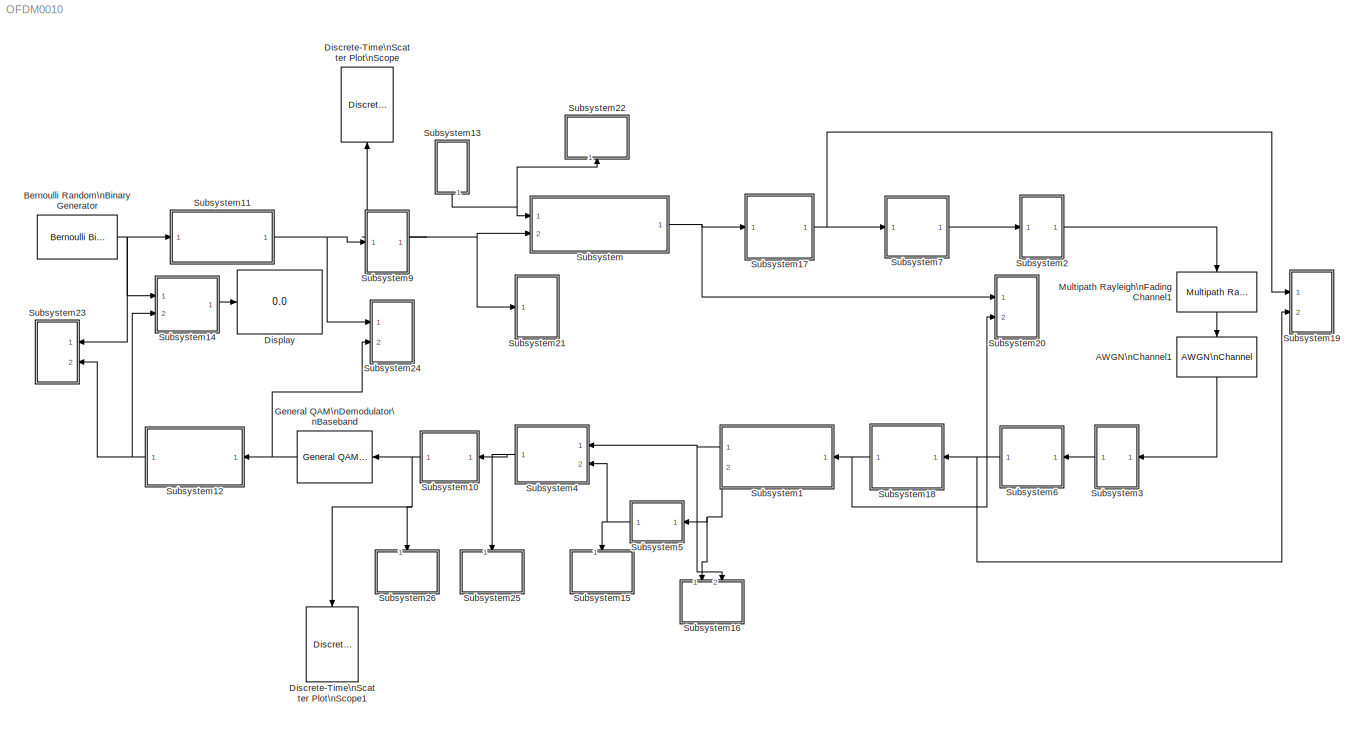
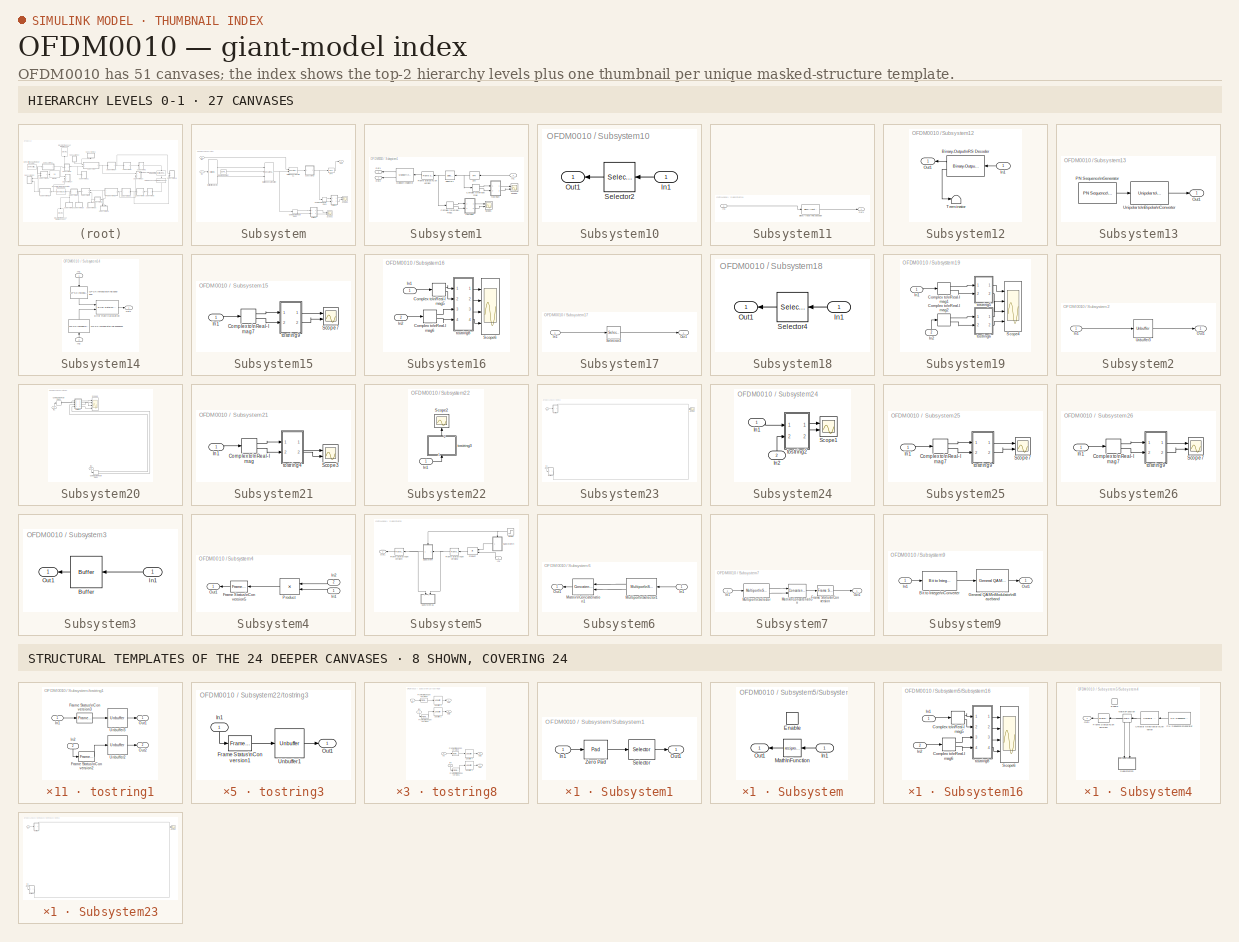
[diagram: thumbnail index - top-2 hierarchy levels (27 canvases) + 8 structural-template representatives of the remaining 24 canvases]
MODEL OFDM0010
KIND model
BLOCK [Reference] AWGN\nChannel1  REF=commchan3/AWGN\nChannel
  EbNodB = 10
  EsNodB = 28
  FunctionWithSeparateData = off
  GeneratePreprocessorConditionals = off
  InputProcessing = Inherited (this choice will be removed - see release notes)
  Ports = [1, 1]
  Ps = 30/(5.5e5*11/15*2.4)*1.08
  RTWMemSecDataConstants = Inherit from model
  RTWMemSecDataInternal = Inherit from model
  RTWMemSecDataParameters = Inherit from model
  RTWMemSecFuncExecute = Inherit from model
  RTWMemSecFuncInitTerm = Inherit from model
  SID = 1
  SNRdB = -5
  ShowPortLabels = FromPortIcon
  SourceBlock = commchan3/AWGN\nChannel
  SourceType = AWGN Channel
  SystemSampleTime = -1
  Tsym = 80e-6
  UserData = DataTag0
  UserDataPersistent = on
  bitsPerSym = 1
  noiseMode = Signal to noise ratio  (SNR)
  seed = 32965
  variance = 1
BLOCK [Reference] Bernoulli Random\nBinary Generator  REF=commrandsrc2/Bernoulli Binary\nGenerator
  FunctionWithSeparateData = off
  GeneratePreprocessorConditionals = off
  P = [0.5]
  Ports = [0, 1]
  RTWMemSecDataConstants = Inherit from model
  RTWMemSecDataInternal = Inherit from model
  RTWMemSecDataParameters = Inherit from model
  RTWMemSecFuncExecute = Inherit from model
  RTWMemSecFuncInitTerm = Inherit from model
  SID = 2
  ShowPortLabels = FromPortIcon
  SourceBlock = commrandsrc2/Bernoulli Binary\nGenerator
  SourceType = Bernoulli Binary Generator
  SystemSampleTime = -1
  Ts = 16e-5/88/2
  frameBased = on
  orient = off
  outDataType = double
  sampPerFrame = 88
  seed = 9364248
BLOCK [Reference] Discrete-Time\nScatter Plot\nScope  REF=commsink2/Discrete-Time\nScatter Plot\nScope
  AxisGrid = on
  FigPos = get(0,'defaultfigureposition');
  FrameNumber = off
  FunctionWithSeparateData = off
  GeneratePreprocessorConditionals = off
  LineColors = b
  LineMarkers = .
  Ports = [1]
  RTWMemSecDataConstants = Inherit from model
  RTWMemSecDataInternal = Inherit from model
  RTWMemSecDataParameters = Inherit from model
  RTWMemSecFuncExecute = Inherit from model
  RTWMemSecFuncInitTerm = Inherit from model
  SID = 205
  ShowPortLabels = FromPortIcon
  SourceBlock = commsink2/Discrete-Time\nScatter Plot\nScope
  SourceType = Discrete-Time Scatter Plot Scope
  SystemSampleTime = -1
  Tag = ScatterPlot
  block_type_ = scatter
  fading = on
  figTitle = Scatter Plot
  inphaseLabel = In-phase Amplitude
  numLinesMax = 8
  numNewFrames = 40
  numTraces = 40
  offsetEye = 0
  openScopeAtSimStart = on
  quadratureLabel = Quadrature Amplitude
  render = on
  sampPerSymb = 1
  xMax = 3.315
  xMin = -3.3
  yMax = 3.315
  yMin = -3.3
BLOCK [Reference] Discrete-Time\nScatter Plot\nScope1  REF=commsink2/Discrete-Time\nScatter Plot\nScope
  AxisGrid = on
  FigPos = get(0,'defaultfigureposition');
  FrameNumber = off
  FunctionWithSeparateData = off
  GeneratePreprocessorConditionals = off
  LineColors = b
  LineMarkers = .
  Ports = [1]
  RTWMemSecDataConstants = Inherit from model
  RTWMemSecDataInternal = Inherit from model
  RTWMemSecDataParameters = Inherit from model
  RTWMemSecFuncExecute = Inherit from model
  RTWMemSecFuncInitTerm = Inherit from model
  SID = 505
  ShowPortLabels = FromPortIcon
  SourceBlock = commsink2/Discrete-Time\nScatter Plot\nScope
  SourceType = Discrete-Time Scatter Plot Scope
  SystemSampleTime = -1
  Tag = ScatterPlot
  block_type_ = scatter
  fading = on
  figTitle = Scatter Plot
  inphaseLabel = In-phase Amplitude
  numLinesMax = 8
  numNewFrames = 40
  numTraces = 40
  offsetEye = 0
  openScopeAtSimStart = on
  quadratureLabel = Quadrature Amplitude
  render = on
  sampPerSymb = 1
  xMax = 3.315
  xMin = -3.3
  yMax = 3.315
  yMin = -3.3
BLOCK [Display] Display
  Decimation = 1
  Lockdown = off
  Ports = [1]
  SID = 11
BLOCK [Reference] General QAM\nDemodulator\nBaseband  REF=commdigbbndam3/General QAM\nDemodulator\nBaseband
  DecType = Hard decision
  OutType = Bit
  Ports = [1, 1]
  SID = 525
  SigCon = [exp(2*pi*i*[0:15]/16)]
  SourceBlock = commdigbbndam3/General QAM\nDemodulator\nBaseband
  SourceType = General QAM Demodulator Baseband
  VarSource = Dialog
  Variance = 1
  accum1DTMode = Inherit via internal rule
  accum1FracLen = 30
  accum1WordLen = 32
  accum2DTMode = Inherit via internal rule
  accum2FracLen = 30
  accum2WordLen = 32
  accum3DTMode = Inherit via internal rule
  accum3FracLen = 30
  accum3WordLen = 32
  invn0DTMode = Same word length as input
  invn0FracLen = 8
  invn0WordLen = 16
  nsiDTMode = Same as accumulator 3
  nsiFracLen = 30
  nsiWordLen = 32
  outDtype = Inherit via internal rule
  outDtypeBit = Inherit via internal rule
  outputDTMode = Inherit via internal rule
  outputFracLen = 30
  outputWordLen = 32
  overflowMode = Wrap
  prodInDTMode = Same as accumulator 1
  prodInFracLen = 30
  prodInWordLen = 32
  prodOutDTMode = Inherit via internal rule
  prodOutFracLen = 30
  prodOutWordLen = 32
  roundingMode = Floor
  sigConstDTMode = Same word length as input
  sigConstWordLen = 16
BLOCK [Reference] Multipath Rayleigh\nFading Channel1  REF=commchan3/Multipath Rayleigh\nFading Channel
  FunctionWithSeparateData = off
  GeneratePreprocessorConditionals = off
  Ports = [1, 1]
  RTWMemSecDataConstants = Inherit from model
  RTWMemSecDataInternal = Inherit from model
  RTWMemSecDataParameters = Inherit from model
  RTWMemSecFuncExecute = Inherit from model
  RTWMemSecFuncInitTerm = Inherit from model
  SID = 146
  ShowPortLabels = FromPortIcon
  SourceBlock = commchan3/Multipath Rayleigh\nFading Channel
  SourceType = Multipath Rayleigh Fading Channel
  SystemSampleTime = -1
  avgPathGaindB = [0 -12]
  centerFreqGaussian1 = 0.0
  centerFreqGaussian2 = 0.0
  coeffBell = 9
  coeffRounded = [1 -1.72 0.785]
  dopplerSpectrum = doppler.jakes
  enableProbe = 0
  freqMinMaxAJakes = [0 1]
  freqMinMaxRJakes = [0 1]
  gainGaussian1 = 0.5
  gainGaussian2 = 0.5
  maxDopplerShift = 40
  normalizePathGains = on
  openVisAtStart = off
  outDelay = off
  outPathGains = off
  pathDelays = [0 2e-6]
  seed = 73
  sigmaGaussian = 1/sqrt(2)
  sigmaGaussian1 = 1/sqrt(2)
  sigmaGaussian2 = 1/sqrt(2)
  spectrumType = Jakes
BLOCK [SubSystem] Subsystem
  FunctionWithSeparateData = off
  MaskDisplay = disp('OFDM Baseband<path> Cyclic Prefix')
  MaskHideContents = off
  MaskIconFrame = on
  MaskIconOpaque = on
  MaskIconRotate = none
  MaskIconUnits = autoscale
  MaskPortRotate = default
  MinAlgLoopOccurrences = off
  Opaque = off
  Ports = [2, 1]
  PropExecContextOutsideSubsystem = off
  RTWSystemCode = Auto
  RequestExecContextInheritance = off
  SID = 19
BLOCK [ComplexToRealImag] Subsystem/Complex to\nReal-Imag1
  Output = Real and imag
  Ports = [1, 2]
  SID = 238
BLOCK [ComplexToRealImag] Subsystem/Complex to\nReal-Imag2
  Output = Real and imag
  Ports = [1, 2]
  SID = 249
BLOCK [Reference] Subsystem/DSP\nConstant  REF=dspobslib/DSP\nConstant
  FramebasedOutput = on
  FunctionWithSeparateData = off
  GeneratePreprocessorConditionals = off
  InterpretAs1D = off
  Ports = [0, 1]
  RTWMemSecDataConstants = Inherit from model
  RTWMemSecDataInternal = Inherit from model
  RTWMemSecDataParameters = Inherit from model
  RTWMemSecFuncExecute = Inherit from model
  RTWMemSecFuncInitTerm = Inherit from model
  SID = 22
  SampleMode = Discrete
  ShowPortLabels = FromPortIcon
  SourceBlock = dspobslib/DSP\nConstant
  SourceType = DSP Constant
  SystemSampleTime = -1
  Ts = 16e-5/2
  Value = 0
  additionalParams = off
  allowOverrides = on
  continuousOutput = Sample-based
  dataType = Inherit from 'Constant value'
  discreteOutput = Frame-based
  fracBitsMode = Best precision
  framePeriod = 16e-5/2
  isSigned = on
  numFracBits = 15
  sampTime = 16e-5/2
  udDataType = sfix(16)
  wordLen = 16
BLOCK [Reference] Subsystem/IFFT  REF=dspxfrm3/IFFT
  BitRevOrder = off
  CompMethod = Table lookup
  FFTLength = 64
  InheritFFTLength = on
  LockScale = off
  Ports = [1, 1]
  RowConvenienceOn = on
  SID = 23
  SkipNorm = on
  SourceBlock = dspxfrm3/IFFT
  SourceType = IFFT
  TableOpt = HYBRID
  TableOptActive = Speed
  accumDataTypeStr = Inherit: Inherit via internal rule
  accumFracLength = 30
  accumLastDataTypeStr = Inherit: Inherit via internal rule
  accumMode = Inherit via internal rule
  accumWordLength = 32
  additionalParams = off
  allowOverrides = on
  cs_in = off
  firstCoeffDataTypeStr = Inherit: Same word length as input
  firstCoeffFracLength = 15
  firstCoeffLastDataTypeStr = Inherit: Same word length as input
  firstCoeffMode = Same word length as input
  firstCoeffWordLength = 16
  mode = Real
  outSamplingMode = Frame based
  outputDataTypeStr = Inherit: Inherit via internal rule
  outputFracLength = 15
  outputLastDataTypeStr = Inherit: Inherit via internal rule
  outputMax = []
  outputMin = []
  outputMode = Inherit via internal rule
  outputWordLength = 16
  overflowMode = off
  prodOutputDataTypeStr = Inherit: Inherit via internal rule
  prodOutputFracLength = 30
  prodOutputLastDataTypeStr = Inherit: Inherit via internal rule
  prodOutputMode = Inherit via internal rule
  prodOutputWordLength = 32
  roundingMode = Floor
BLOCK [Inport] Subsystem/In1
  IconDisplay = Port number
  SID = 20
BLOCK [Inport] Subsystem/In2
  IconDisplay = Port number
  Port = 2
  SID = 21
BLOCK [Concatenate] Subsystem/Matrix\nConcatenation
  Mode = Multidimensional array
  NumInputs = 3
  Ports = [3, 1]
  SID = 24
BLOCK [Concatenate] Subsystem/Matrix\nConcatenation1
  ConcatenateDimension = 2
  Mode = Multidimensional array
  Ports = [2, 1]
  SID = 25
BLOCK [Reference] Subsystem/Multiport\nSelector  REF=dspindex/Multiport\nSelector
  Ports = [1, 2]
  SID = 26
  SourceBlock = dspindex/Multiport\nSelector
  SourceType = Multiport Selector
  idxCellArray = {1:15,16:30}
  idxErrMode = Clip Index
  rowsOrCols = Rows
BLOCK [Outport] Subsystem/Out1
  IconDisplay = Port number
  SID = 32
BLOCK [Scope] Subsystem/Scope1
  DataFormat = StructureWithTime
  Floating = off
  NumInputPorts = 2
  Ports = [2]
  SID = 239
  SampleTime = 0
  SaveName = ScopeData5
  YMax = 5~5
  YMin = -5~-5
BLOCK [Scope] Subsystem/Scope2
  DataFormat = StructureWithTime
  Floating = off
  NumInputPorts = 2
  Ports = [2]
  SID = 250
  SampleTime = 0
  SaveName = ScopeData6
  YMax = 5~5
  YMin = -5~-5
BLOCK [SubSystem] Subsystem/Subsystem1
  FunctionWithSeparateData = off
  MaskDisplay = disp('Zero Pad')
  MaskHideContents = off
  MaskIconFrame = on
  MaskIconOpaque = on
  MaskIconRotate = none
  MaskIconUnits = autoscale
  MaskPortRotate = default
  MinAlgLoopOccurrences = off
  Opaque = off
  Ports = [1, 1]
  PropExecContextOutsideSubsystem = off
  RTWSystemCode = Auto
  RequestExecContextInheritance = off
  SID = 27
BLOCK [Inport] Subsystem/Subsystem1/In1
  IconDisplay = Port number
  SID = 28
BLOCK [Outport] Subsystem/Subsystem1/Out1
  IconDisplay = Port number
  SID = 31
BLOCK [Selector] Subsystem/Subsystem1/Selector
  IndexOptions = Index vector (dialog),Select all
  Indices = [16:64,1:15],-1
  InputPortWidth = 64
  NumberOfDimensions = 2
  OutputSizes = 1
  Ports = [1, 1]
  SID = 29
BLOCK [Reference] Subsystem/Subsystem1/Zero Pad  REF=dspsigops/Pad
  LockScale = off
  Ports = [1, 1]
  SID = 30
  SourceBlock = dspsigops/Pad
  SourceType = Pad
  accumFracLength = 0
  accumMode = Same as input
  accumWordLength = 0
  dimsToPad = 1
  isVarDimsMode = off
  numOutCols = 2
  numOutRows = 64
  outSize = 1
  outSizeMode = User-specified
  outputFracLength = 0
  outputMode = Same as input
  outputWordLength = 0
  overflowMode = off
  padAlong = Columns and rows
  padBeginning = 0
  padEnd = 0
  padNumOutColsSpecMethod = User-specified
  padNumOutRowsSpecMethod = User-specified
  padSigAt = End
  padVal = 0
  roundingMode = Floor
  spec = Output size
  truncOrWrapMode = Truncate
  trunc_flag = None
  valSrc = Specify via dialog
  wrap_flag = None
BLOCK [SubSystem] Subsystem/tostring1
  FunctionWithSeparateData = off
  MaskHideContents = off
  MinAlgLoopOccurrences = off
  Opaque = off
  Ports = [2, 2]
  PropExecContextOutsideSubsystem = off
  RTWSystemCode = Auto
  RequestExecContextInheritance = off
  SID = 240
BLOCK [Reference] Subsystem/tostring1/Frame Status\nConversion2  REF=dspobslib/Frame Status\nConversion
  FunctionWithSeparateData = off
  GeneratePreprocessorConditionals = off
  Ports = [1, 1]
  RTWMemSecDataConstants = Inherit from model
  RTWMemSecDataInternal = Inherit from model
  RTWMemSecDataParameters = Inherit from model
  RTWMemSecFuncExecute = Inherit from model
  RTWMemSecFuncInitTerm = Inherit from model
  SID = 243
  ShowPortLabels = none
  SourceBlock = dspobslib/Frame Status\nConversion
  SourceType = Frame Status Conversion
  SystemSampleTime = -1
  growRefPort = off
  outframe = Sample-based
BLOCK [Reference] Subsystem/tostring1/Frame Status\nConversion3  REF=dspobslib/Frame Status\nConversion
  FunctionWithSeparateData = off
  GeneratePreprocessorConditionals = off
  Ports = [1, 1]
  RTWMemSecDataConstants = Inherit from model
  RTWMemSecDataInternal = Inherit from model
  RTWMemSecDataParameters = Inherit from model
  RTWMemSecFuncExecute = Inherit from model
  RTWMemSecFuncInitTerm = Inherit from model
  SID = 244
  ShowPortLabels = none
  SourceBlock = dspobslib/Frame Status\nConversion
  SourceType = Frame Status Conversion
  SystemSampleTime = -1
  growRefPort = off
  outframe = Sample-based
BLOCK [Inport] Subsystem/tostring1/In1
  IconDisplay = Port number
  SID = 241
BLOCK [Inport] Subsystem/tostring1/In2
  IconDisplay = Port number
  Port = 2
  SID = 242
BLOCK [Outport] Subsystem/tostring1/Out1
  IconDisplay = Port number
  SID = 247
BLOCK [Outport] Subsystem/tostring1/Out2
  IconDisplay = Port number
  Port = 2
  SID = 248
BLOCK [Unbuffer] Subsystem/tostring1/Unbuffer2
  Ports = [1, 1]
  SID = 245
  SampleBasedProcessing = Same as frame based
BLOCK [Unbuffer] Subsystem/tostring1/Unbuffer3
  Ports = [1, 1]
  SID = 246
  SampleBasedProcessing = Same as frame based
BLOCK [SubSystem] Subsystem/tostring2
  FunctionWithSeparateData = off
  MaskHideContents = off
  MinAlgLoopOccurrences = off
  Opaque = off
  Ports = [2, 2]
  PropExecContextOutsideSubsystem = off
  RTWSystemCode = Auto
  RequestExecContextInheritance = off
  SID = 251
BLOCK [Reference] Subsystem/tostring2/Frame Status\nConversion2  REF=dspobslib/Frame Status\nConversion
  FunctionWithSeparateData = off
  GeneratePreprocessorConditionals = off
  Ports = [1, 1]
  RTWMemSecDataConstants = Inherit from model
  RTWMemSecDataInternal = Inherit from model
  RTWMemSecDataParameters = Inherit from model
  RTWMemSecFuncExecute = Inherit from model
  RTWMemSecFuncInitTerm = Inherit from model
  SID = 254
  ShowPortLabels = none
  SourceBlock = dspobslib/Frame Status\nConversion
  SourceType = Frame Status Conversion
  SystemSampleTime = -1
  growRefPort = off
  outframe = Sample-based
BLOCK [Reference] Subsystem/tostring2/Frame Status\nConversion3  REF=dspobslib/Frame Status\nConversion
  FunctionWithSeparateData = off
  GeneratePreprocessorConditionals = off
  Ports = [1, 1]
  RTWMemSecDataConstants = Inherit from model
  RTWMemSecDataInternal = Inherit from model
  RTWMemSecDataParameters = Inherit from model
  RTWMemSecFuncExecute = Inherit from model
  RTWMemSecFuncInitTerm = Inherit from model
  SID = 255
  ShowPortLabels = none
  SourceBlock = dspobslib/Frame Status\nConversion
  SourceType = Frame Status Conversion
  SystemSampleTime = -1
  growRefPort = off
  outframe = Sample-based
BLOCK [Inport] Subsystem/tostring2/In1
  IconDisplay = Port number
  SID = 252
BLOCK [Inport] Subsystem/tostring2/In2
  IconDisplay = Port number
  Port = 2
  SID = 253
BLOCK [Outport] Subsystem/tostring2/Out1
  IconDisplay = Port number
  SID = 258
BLOCK [Outport] Subsystem/tostring2/Out2
  IconDisplay = Port number
  Port = 2
  SID = 259
BLOCK [Unbuffer] Subsystem/tostring2/Unbuffer2
  Ports = [1, 1]
  SID = 256
  SampleBasedProcessing = Same as frame based
BLOCK [Unbuffer] Subsystem/tostring2/Unbuffer3
  Ports = [1, 1]
  SID = 257
  SampleBasedProcessing = Same as frame based
BLOCK [SubSystem] Subsystem1
  FunctionWithSeparateData = off
  MaskDisplay = disp('OFDM Baseband\\nDemodulator\\ndan \\nRemove Cyclic prefix')
  MaskHideContents = off
  MaskIconFrame = on
  MaskIconOpaque = on
  MaskIconRotate = none
  MaskIconUnits = autoscale
  MaskPortRotate = default
  MinAlgLoopOccurrences = off
  Opaque = off
  Ports = [1, 2]
  PropExecContextOutsideSubsystem = off
  RTWSystemCode = Auto
  RequestExecContextInheritance = off
  SID = 33
BLOCK [ComplexToRealImag] Subsystem1/Complex to\nReal-Imag
  Output = Real and imag
  Ports = [1, 2]
  SID = 302
BLOCK [ComplexToRealImag] Subsystem1/Complex to\nReal-Imag1
  Output = Real and imag
  Ports = [1, 2]
  SID = 313
BLOCK [Reference] Subsystem1/FFT  REF=dspxfrm3/FFT
  BitRevOrder = off
  CompMethod = Table lookup
  FFTLength = 64
  InheritFFTLength = on
  LockScale = off
  Ports = [1, 1]
  RowConvenienceOn = on
  SID = 35
  SkipNorm = off
  SourceBlock = dspxfrm3/FFT
  SourceType = FFT
  TableOpt = HYBRID
  TableOptActive = Speed
  accumDataTypeStr = Inherit: Inherit via internal rule
  accumFracLength = 30
  accumLastDataTypeStr = Inherit: Inherit via internal rule
  accumMode = Inherit via internal rule
  accumWordLength = 32
  additionalParams = off
  allowOverrides = on
  firstCoeffDataTypeStr = Inherit: Same word length as input
  firstCoeffFracLength = 15
  firstCoeffLastDataTypeStr = Inherit: Same word length as input
  firstCoeffMode = Same word length as input
  firstCoeffWordLength = 16
  outputDataTypeStr = Inherit: Inherit via internal rule
  outputFracLength = 15
  outputLastDataTypeStr = Inherit: Inherit via internal rule
  outputMax = []
  outputMin = []
  outputMode = Inherit via internal rule
  outputWordLength = 16
  overflowMode = off
  prodOutputDataTypeStr = Inherit: Inherit via internal rule
  prodOutputFracLength = 30
  prodOutputLastDataTypeStr = Inherit: Inherit via internal rule
  prodOutputMode = Inherit via internal rule
  prodOutputWordLength = 32
  roundingMode = Floor
BLOCK [Reference] Subsystem1/Frame Status\nConversion  REF=dspobslib/Frame Status\nConversion
  FunctionWithSeparateData = off
  GeneratePreprocessorConditionals = off
  Ports = [1, 1]
  RTWMemSecDataConstants = Inherit from model
  RTWMemSecDataInternal = Inherit from model
  RTWMemSecDataParameters = Inherit from model
  RTWMemSecFuncExecute = Inherit from model
  RTWMemSecFuncInitTerm = Inherit from model
  SID = 36
  ShowPortLabels = none
  SourceBlock = dspobslib/Frame Status\nConversion
  SourceType = Frame Status Conversion
  SystemSampleTime = -1
  growRefPort = off
  outframe = Frame-based
BLOCK [Inport] Subsystem1/In1
  IconDisplay = Port number
  SID = 34
BLOCK [Reference] Subsystem1/Multiport\nSelector  REF=dspindex/Multiport\nSelector
  Ports = [1, 2]
  SID = 37
  SourceBlock = dspindex/Multiport\nSelector
  SourceType = Multiport Selector
  idxCellArray = {1,2}
  idxErrMode = Clip Index
  rowsOrCols = Columns
BLOCK [Outport] Subsystem1/Out1
  IconDisplay = Port number
  SID = 39
BLOCK [Outport] Subsystem1/Out2
  IconDisplay = Port number
  Port = 2
  SID = 40
BLOCK [Scope] Subsystem1/Scope1
  DataFormat = StructureWithTime
  Floating = off
  NumInputPorts = 2
  Ports = [2]
  SID = 314
  SampleTime = 0
  SaveName = ScopeData9
  YMax = 5~5
  YMin = -5~-5
BLOCK [Scope] Subsystem1/Scope3
  DataFormat = StructureWithTime
  Floating = off
  NumInputPorts = 2
  Ports = [2]
  SID = 303
  SampleTime = 0
  SaveName = ScopeData8
  YMax = 5~5
  YMin = -5~-5
BLOCK [Selector] Subsystem1/Selector1
  IndexOptions = Index vector (dialog),Select all
  Indices = [50:64,1:16],-1
  InputPortWidth = 64
  NumberOfDimensions = 2
  OutputSizes = 1
  Ports = [1, 1]
  SID = 38
BLOCK [SubSystem] Subsystem1/tostring1
  FunctionWithSeparateData = off
  MaskHideContents = off
  MinAlgLoopOccurrences = off
  Opaque = off
  Ports = [2, 2]
  PropExecContextOutsideSubsystem = off
  RTWSystemCode = Auto
  RequestExecContextInheritance = off
  SID = 315
BLOCK [Reference] Subsystem1/tostring1/Frame Status\nConversion2  REF=dspobslib/Frame Status\nConversion
  FunctionWithSeparateData = off
  GeneratePreprocessorConditionals = off
  Ports = [1, 1]
  RTWMemSecDataConstants = Inherit from model
  RTWMemSecDataInternal = Inherit from model
  RTWMemSecDataParameters = Inherit from model
  RTWMemSecFuncExecute = Inherit from model
  RTWMemSecFuncInitTerm = Inherit from model
  SID = 318
  ShowPortLabels = none
  SourceBlock = dspobslib/Frame Status\nConversion
  SourceType = Frame Status Conversion
  SystemSampleTime = -1
  growRefPort = off
  outframe = Sample-based
BLOCK [Reference] Subsystem1/tostring1/Frame Status\nConversion3  REF=dspobslib/Frame Status\nConversion
  FunctionWithSeparateData = off
  GeneratePreprocessorConditionals = off
  Ports = [1, 1]
  RTWMemSecDataConstants = Inherit from model
  RTWMemSecDataInternal = Inherit from model
  RTWMemSecDataParameters = Inherit from model
  RTWMemSecFuncExecute = Inherit from model
  RTWMemSecFuncInitTerm = Inherit from model
  SID = 319
  ShowPortLabels = none
  SourceBlock = dspobslib/Frame Status\nConversion
  SourceType = Frame Status Conversion
  SystemSampleTime = -1
  growRefPort = off
  outframe = Sample-based
BLOCK [Inport] Subsystem1/tostring1/In1
  IconDisplay = Port number
  SID = 316
BLOCK [Inport] Subsystem1/tostring1/In2
  IconDisplay = Port number
  Port = 2
  SID = 317
BLOCK [Outport] Subsystem1/tostring1/Out1
  IconDisplay = Port number
  SID = 322
BLOCK [Outport] Subsystem1/tostring1/Out2
  IconDisplay = Port number
  Port = 2
  SID = 323
BLOCK [Unbuffer] Subsystem1/tostring1/Unbuffer2
  Ports = [1, 1]
  SID = 320
  SampleBasedProcessing = Same as frame based
BLOCK [Unbuffer] Subsystem1/tostring1/Unbuffer3
  Ports = [1, 1]
  SID = 321
  SampleBasedProcessing = Same as frame based
BLOCK [SubSystem] Subsystem1/tostring4
  FunctionWithSeparateData = off
  MaskHideContents = off
  MinAlgLoopOccurrences = off
  Opaque = off
  Ports = [2, 2]
  PropExecContextOutsideSubsystem = off
  RTWSystemCode = Auto
  RequestExecContextInheritance = off
  SID = 304
BLOCK [Reference] Subsystem1/tostring4/Frame Status\nConversion2  REF=dspobslib/Frame Status\nConversion
  FunctionWithSeparateData = off
  GeneratePreprocessorConditionals = off
  Ports = [1, 1]
  RTWMemSecDataConstants = Inherit from model
  RTWMemSecDataInternal = Inherit from model
  RTWMemSecDataParameters = Inherit from model
  RTWMemSecFuncExecute = Inherit from model
  RTWMemSecFuncInitTerm = Inherit from model
  SID = 307
  ShowPortLabels = none
  SourceBlock = dspobslib/Frame Status\nConversion
  SourceType = Frame Status Conversion
  SystemSampleTime = -1
  growRefPort = off
  outframe = Sample-based
BLOCK [Reference] Subsystem1/tostring4/Frame Status\nConversion3  REF=dspobslib/Frame Status\nConversion
  FunctionWithSeparateData = off
  GeneratePreprocessorConditionals = off
  Ports = [1, 1]
  RTWMemSecDataConstants = Inherit from model
  RTWMemSecDataInternal = Inherit from model
  RTWMemSecDataParameters = Inherit from model
  RTWMemSecFuncExecute = Inherit from model
  RTWMemSecFuncInitTerm = Inherit from model
  SID = 308
  ShowPortLabels = none
  SourceBlock = dspobslib/Frame Status\nConversion
  SourceType = Frame Status Conversion
  SystemSampleTime = -1
  growRefPort = off
  outframe = Sample-based
BLOCK [Inport] Subsystem1/tostring4/In1
  IconDisplay = Port number
  SID = 305
BLOCK [Inport] Subsystem1/tostring4/In2
  IconDisplay = Port number
  Port = 2
  SID = 306
BLOCK [Outport] Subsystem1/tostring4/Out1
  IconDisplay = Port number
  SID = 311
BLOCK [Outport] Subsystem1/tostring4/Out2
  IconDisplay = Port number
  Port = 2
  SID = 312
BLOCK [Unbuffer] Subsystem1/tostring4/Unbuffer2
  Ports = [1, 1]
  SID = 309
  SampleBasedProcessing = Same as frame based
BLOCK [Unbuffer] Subsystem1/tostring4/Unbuffer3
  Ports = [1, 1]
  SID = 310
  SampleBasedProcessing = Same as frame based
BLOCK [SubSystem] Subsystem10
  FunctionWithSeparateData = off
  MaskDisplay = disp('Remove\\nZero')
  MaskHideContents = off
  MaskIconFrame = on
  MaskIconOpaque = on
  MaskIconRotate = none
  MaskIconUnits = autoscale
  MaskPortRotate = default
  MinAlgLoopOccurrences = off
  Opaque = off
  Ports = [1, 1]
  PropExecContextOutsideSubsystem = off
  RTWSystemCode = Auto
  RequestExecContextInheritance = off
  SID = 41
BLOCK [Inport] Subsystem10/In1
  IconDisplay = Port number
  SID = 42
BLOCK [Outport] Subsystem10/Out1
  IconDisplay = Port number
  SID = 44
BLOCK [Selector] Subsystem10/Selector2
  IndexOptions = Index vector (dialog),Select all
  Indices = [1:15,17:31],-1
  InputPortWidth = 31
  NumberOfDimensions = 2
  OutputSizes = 1
  Ports = [1, 1]
  SID = 43
BLOCK [SubSystem] Subsystem11
  FunctionWithSeparateData = off
  MaskDisplay = disp('RS(15,11) Encoder')
  MaskHideContents = off
  MaskIconFrame = on
  MaskIconOpaque = on
  MaskIconRotate = none
  MaskIconUnits = autoscale
  MaskPortRotate = default
  MinAlgLoopOccurrences = off
  Opaque = off
  Ports = [1, 1]
  PropExecContextOutsideSubsystem = off
  RTWSystemCode = Auto
  RequestExecContextInheritance = off
  SID = 45
BLOCK [Reference] Subsystem11/Binary-Input\nRS Encoder  REF=commblkcod2/Binary-Input\nRS Encoder
  FunctionWithSeparateData = off
  GeneratePreprocessorConditionals = off
  Ports = [1, 1]
  RTWMemSecDataConstants = Inherit from model
  RTWMemSecDataInternal = Inherit from model
  RTWMemSecDataParameters = Inherit from model
  RTWMemSecFuncExecute = Inherit from model
  RTWMemSecFuncInitTerm = Inherit from model
  SID = 47
  ShowPortLabels = FromPortIcon
  SourceBlock = commblkcod2/Binary-Input\nRS Encoder
  SourceType = Binary-Input RS Encoder
  SystemSampleTime = -1
  genPoly = rsgenpoly(7,3)
  k = 11
  n = 15
  outDType = Same as input
  prPoly = [1 0 1 1]
  punctVec = [ones(2,1); zeros(2,1)]
  specGenPoly = off
  specPrimPoly = off
  specPuncture = off
BLOCK [Inport] Subsystem11/In1
  IconDisplay = Port number
  SID = 46
BLOCK [Outport] Subsystem11/Out1
  IconDisplay = Port number
  SID = 48
BLOCK [SubSystem] Subsystem12
  FunctionWithSeparateData = off
  MaskDisplay = disp('RS(15,11) Decoder')
  MaskHideContents = off
  MaskIconFrame = on
  MaskIconOpaque = on
  MaskIconRotate = none
  MaskIconUnits = autoscale
  MaskPortRotate = default
  MinAlgLoopOccurrences = off
  Opaque = off
  Ports = [1, 1]
  PropExecContextOutsideSubsystem = off
  RTWSystemCode = Auto
  RequestExecContextInheritance = off
  SID = 49
BLOCK [Reference] Subsystem12/Binary-Output\nRS Decoder  REF=commblkcod2/Binary-Output\nRS Decoder
  FunctionWithSeparateData = off
  GeneratePreprocessorConditionals = off
  Ports = [1, 2]
  RTWMemSecDataConstants = Inherit from model
  RTWMemSecDataInternal = Inherit from model
  RTWMemSecDataParameters = Inherit from model
  RTWMemSecFuncExecute = Inherit from model
  RTWMemSecFuncInitTerm = Inherit from model
  SID = 51
  ShowPortLabels = FromPortIcon
  SourceBlock = commblkcod2/Binary-Output\nRS Decoder
  SourceType = Binary-Output RS Decoder
  SystemSampleTime = -1
  genPoly = rsgenpoly(7,3)
  k = 11
  n = 15
  outDType = Same as input
  prPoly = [1 0 1 1]
  punctVec = [ones(2,1); zeros(2,1)]
  showNumErr = on
  specErasurePort = off
  specGenPoly = off
  specPrimPoly = off
  specPuncture = off
BLOCK [Inport] Subsystem12/In1
  IconDisplay = Port number
  SID = 50
BLOCK [Outport] Subsystem12/Out1
  IconDisplay = Port number
  SID = 53
BLOCK [Terminator] Subsystem12/Terminator
  SID = 52
BLOCK [SubSystem] Subsystem13
  FunctionWithSeparateData = off
  MaskDisplay = disp('Training')
  MaskHideContents = off
  MaskIconFrame = on
  MaskIconOpaque = on
  MaskIconRotate = none
  MaskIconUnits = autoscale
  MaskPortRotate = default
  MinAlgLoopOccurrences = off
  Opaque = off
  Ports = [0, 1]
  PropExecContextOutsideSubsystem = off
  RTWSystemCode = Auto
  RequestExecContextInheritance = off
  SID = 54
BLOCK [Outport] Subsystem13/Out1
  IconDisplay = Port number
  SID = 57
BLOCK [Reference] Subsystem13/PN Sequence\nGenerator  REF=commseqgen2/PN Sequence\nGenerator
  Ports = [0, 1]
  SID = 55
  SourceBlock = commseqgen2/PN Sequence\nGenerator
  SourceType = PN Sequence Generator
  Ts = 16e-5/2/31
  bitPackDataSigned = off
  bitPackedOutDType = double
  bitPackedOutputs = off
  frameBased = on
  ini_sta = [0 0 0 0 0 1]
  maxOutSize = [10 1]
  maxOutSizeMode = Dialog parameter
  numPackedBits = 8
  outBitMaskSource = Dialog parameter
  outDataType = double
  outVarSiz = off
  poly = [1 0 0 0 0 1 1]
  reset = off
  sampPerFrame = 31
  shift = 0
BLOCK [Reference] Subsystem13/Unipolar to\nBipolar\nConverter  REF=commutil2/Unipolar to\nBipolar\nConverter
  FunctionWithSeparateData = off
  GeneratePreprocessorConditionals = off
  M = 2
  Ports = [1, 1]
  RTWMemSecDataConstants = Inherit from model
  RTWMemSecDataInternal = Inherit from model
  RTWMemSecDataParameters = Inherit from model
  RTWMemSecFuncExecute = Inherit from model
  RTWMemSecFuncInitTerm = Inherit from model
  SID = 56
  ShowPortLabels = FromPortIcon
  SourceBlock = commutil2/Unipolar to\nBipolar\nConverter
  SourceType = Unipolar to Bipolar Converter
  SystemSampleTime = -1
  dataType = Inherit via internal rule
  polarity = Positive
BLOCK [SubSystem] Subsystem14
  FunctionWithSeparateData = off
  MaskDisplay = disp('SER\\nCalculation')
  MaskHideContents = off
  MaskIconFrame = on
  MaskIconOpaque = on
  MaskIconRotate = none
  MaskIconUnits = autoscale
  MaskPortRotate = default
  MinAlgLoopOccurrences = off
  Opaque = off
  Ports = [2, 1]
  PropExecContextOutsideSubsystem = off
  RTWSystemCode = Auto
  RequestExecContextInheritance = off
  SID = 58
BLOCK [Reference] Subsystem14/Error Rate Calculation  REF=commsink2/Error Rate\nCalculation
  N = 44
  PMode = Port
  Ports = [2, 1]
  RsMode2 = off
  SID = 61
  SourceBlock = commsink2/Error Rate\nCalculation
  SourceType = Error Rate Calculation
  WsName = ErrorVec
  cp_mode = Entire frame
  maxBits = 2e4
  numErr = inf
  st_delay = 0
  stop = off
  subframe = []
BLOCK [Inport] Subsystem14/In1
  IconDisplay = Port number
  SID = 59
BLOCK [Inport] Subsystem14/In2
  IconDisplay = Port number
  Port = 2
  SID = 60
BLOCK [Outport] Subsystem14/Out1
  IconDisplay = Port number
  SID = 64
BLOCK [Reference] Subsystem14/QPSK\nModulator\nBaseband  REF=commdigbbndpm3/QPSK\nModulator\nBaseband
  Enc = Binary
  FunctionWithSeparateData = off
  GeneratePreprocessorConditionals = off
  InType = Bit
  Ph = pi/4
  Ports = [1, 1]
  RTWMemSecDataConstants = Inherit from model
  RTWMemSecDataInternal = Inherit from model
  RTWMemSecDataParameters = Inherit from model
  RTWMemSecFuncExecute = Inherit from model
  RTWMemSecFuncInitTerm = Inherit from model
  SID = 148
  ShowPortLabels = FromPortIcon
  SourceBlock = commdigbbndpm3/QPSK\nModulator\nBaseband
  SourceType = QPSK Modulator Baseband
  SystemSampleTime = -1
  outDtype = double
  outFracLen = 15
  outFracLenMode = Best precision
  outUDDataType = sfix(16)
  outWordLen = 16
BLOCK [Reference] Subsystem14/QPSK\nModulator\nBaseband1  REF=commdigbbndpm3/QPSK\nModulator\nBaseband
  Enc = Binary
  FunctionWithSeparateData = off
  GeneratePreprocessorConditionals = off
  InType = Bit
  Ph = pi/4
  Ports = [1, 1]
  RTWMemSecDataConstants = Inherit from model
  RTWMemSecDataInternal = Inherit from model
  RTWMemSecDataParameters = Inherit from model
  RTWMemSecFuncExecute = Inherit from model
  RTWMemSecFuncInitTerm = Inherit from model
  SID = 149
  ShowPortLabels = FromPortIcon
  SourceBlock = commdigbbndpm3/QPSK\nModulator\nBaseband
  SourceType = QPSK Modulator Baseband
  SystemSampleTime = -1
  outDtype = double
  outFracLen = 15
  outFracLenMode = Best precision
  outUDDataType = sfix(16)
  outWordLen = 16
BLOCK [SubSystem] Subsystem15
  FunctionWithSeparateData = off
  MaskHideContents = off
  MinAlgLoopOccurrences = off
  Opaque = off
  Ports = [1]
  PropExecContextOutsideSubsystem = off
  RTWSystemCode = Auto
  RequestExecContextInheritance = off
  SID = 362
BLOCK [ComplexToRealImag] Subsystem15/Complex to\nReal-Imag7
  Output = Real and imag
  Ports = [1, 2]
  SID = 351
BLOCK [Inport] Subsystem15/In1
  IconDisplay = Port number
  SID = 363
BLOCK [Scope] Subsystem15/Scope7
  DataFormat = StructureWithTime
  Floating = off
  NumInputPorts = 2
  Ports = [2]
  SID = 352
  SampleTime = 0
  SaveName = ScopeData11
  YMax = 5~5
  YMin = -5~-5
BLOCK [SubSystem] Subsystem15/tostring9
  FunctionWithSeparateData = off
  MaskHideContents = off
  MinAlgLoopOccurrences = off
  Opaque = off
  Ports = [2, 2]
  PropExecContextOutsideSubsystem = off
  RTWSystemCode = Auto
  RequestExecContextInheritance = off
  SID = 353
BLOCK [Reference] Subsystem15/tostring9/Frame Status\nConversion2  REF=dspobslib/Frame Status\nConversion
  FunctionWithSeparateData = off
  GeneratePreprocessorConditionals = off
  Ports = [1, 1]
  RTWMemSecDataConstants = Inherit from model
  RTWMemSecDataInternal = Inherit from model
  RTWMemSecDataParameters = Inherit from model
  RTWMemSecFuncExecute = Inherit from model
  RTWMemSecFuncInitTerm = Inherit from model
  SID = 356
  ShowPortLabels = none
  SourceBlock = dspobslib/Frame Status\nConversion
  SourceType = Frame Status Conversion
  SystemSampleTime = -1
  growRefPort = off
  outframe = Sample-based
BLOCK [Reference] Subsystem15/tostring9/Frame Status\nConversion3  REF=dspobslib/Frame Status\nConversion
  FunctionWithSeparateData = off
  GeneratePreprocessorConditionals = off
  Ports = [1, 1]
  RTWMemSecDataConstants = Inherit from model
  RTWMemSecDataInternal = Inherit from model
  RTWMemSecDataParameters = Inherit from model
  RTWMemSecFuncExecute = Inherit from model
  RTWMemSecFuncInitTerm = Inherit from model
  SID = 357
  ShowPortLabels = none
  SourceBlock = dspobslib/Frame Status\nConversion
  SourceType = Frame Status Conversion
  SystemSampleTime = -1
  growRefPort = off
  outframe = Sample-based
BLOCK [Inport] Subsystem15/tostring9/In1
  IconDisplay = Port number
  SID = 354
BLOCK [Inport] Subsystem15/tostring9/In2
  IconDisplay = Port number
  Port = 2
  SID = 355
BLOCK [Outport] Subsystem15/tostring9/Out1
  IconDisplay = Port number
  SID = 360
BLOCK [Outport] Subsystem15/tostring9/Out2
  IconDisplay = Port number
  Port = 2
  SID = 361
BLOCK [Unbuffer] Subsystem15/tostring9/Unbuffer2
  Ports = [1, 1]
  SID = 358
  SampleBasedProcessing = Same as frame based
BLOCK [Unbuffer] Subsystem15/tostring9/Unbuffer3
  Ports = [1, 1]
  SID = 359
  SampleBasedProcessing = Same as frame based
BLOCK [SubSystem] Subsystem16
  FunctionWithSeparateData = off
  MaskHideContents = off
  MinAlgLoopOccurrences = off
  Opaque = off
  Ports = [2]
  PropExecContextOutsideSubsystem = off
  RTWSystemCode = Auto
  RequestExecContextInheritance = off
  SID = 364
BLOCK [ComplexToRealImag] Subsystem16/Complex to\nReal-Imag5
  Output = Real and imag
  Ports = [1, 2]
  SID = 331
BLOCK [ComplexToRealImag] Subsystem16/Complex to\nReal-Imag6
  Output = Real and imag
  Ports = [1, 2]
  SID = 350
BLOCK [Inport] Subsystem16/In1
  IconDisplay = Port number
  SID = 365
BLOCK [Inport] Subsystem16/In2
  IconDisplay = Port number
  Port = 2
  SID = 366
BLOCK [Scope] Subsystem16/Scope6
  DataFormat = StructureWithTime
  Floating = off
  NumInputPorts = 4
  Ports = [4]
  SID = 332
  SampleTime = 0
  SaveName = ScopeData10
  YMax = 5~5~5~5
  YMin = -5~-5~-5~-5
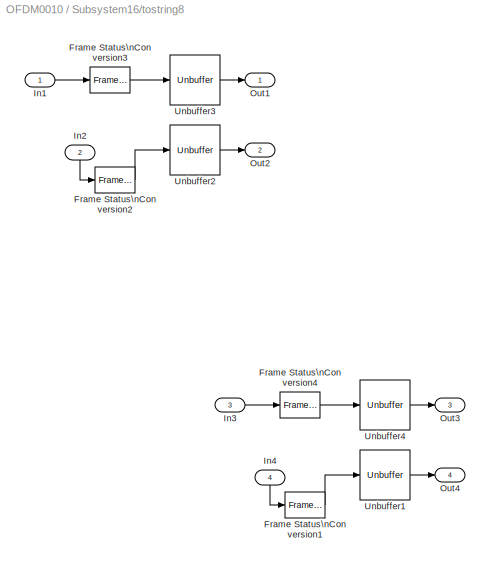
BLOCK [SubSystem] Subsystem16/tostring8
  FunctionWithSeparateData = off
  MaskHideContents = off
  MinAlgLoopOccurrences = off
  Opaque = off
  Ports = [4, 4]
  PropExecContextOutsideSubsystem = off
  RTWSystemCode = Auto
  RequestExecContextInheritance = off
  SID = 333
BLOCK [Reference] Subsystem16/tostring8/Frame Status\nConversion1  REF=dspobslib/Frame Status\nConversion
  FunctionWithSeparateData = off
  GeneratePreprocessorConditionals = off
  Ports = [1, 1]
  RTWMemSecDataConstants = Inherit from model
  RTWMemSecDataInternal = Inherit from model
  RTWMemSecDataParameters = Inherit from model
  RTWMemSecFuncExecute = Inherit from model
  RTWMemSecFuncInitTerm = Inherit from model
  SID = 344
  ShowPortLabels = none
  SourceBlock = dspobslib/Frame Status\nConversion
  SourceType = Frame Status Conversion
  SystemSampleTime = -1
  growRefPort = off
  outframe = Sample-based
BLOCK [Reference] Subsystem16/tostring8/Frame Status\nConversion2  REF=dspobslib/Frame Status\nConversion
  FunctionWithSeparateData = off
  GeneratePreprocessorConditionals = off
  Ports = [1, 1]
  RTWMemSecDataConstants = Inherit from model
  RTWMemSecDataInternal = Inherit from model
  RTWMemSecDataParameters = Inherit from model
  RTWMemSecFuncExecute = Inherit from model
  RTWMemSecFuncInitTerm = Inherit from model
  SID = 336
  ShowPortLabels = none
  SourceBlock = dspobslib/Frame Status\nConversion
  SourceType = Frame Status Conversion
  SystemSampleTime = -1
  growRefPort = off
  outframe = Sample-based
BLOCK [Reference] Subsystem16/tostring8/Frame Status\nConversion3  REF=dspobslib/Frame Status\nConversion
  FunctionWithSeparateData = off
  GeneratePreprocessorConditionals = off
  Ports = [1, 1]
  RTWMemSecDataConstants = Inherit from model
  RTWMemSecDataInternal = Inherit from model
  RTWMemSecDataParameters = Inherit from model
  RTWMemSecFuncExecute = Inherit from model
  RTWMemSecFuncInitTerm = Inherit from model
  SID = 337
  ShowPortLabels = none
  SourceBlock = dspobslib/Frame Status\nConversion
  SourceType = Frame Status Conversion
  SystemSampleTime = -1
  growRefPort = off
  outframe = Sample-based
BLOCK [Reference] Subsystem16/tostring8/Frame Status\nConversion4  REF=dspobslib/Frame Status\nConversion
  FunctionWithSeparateData = off
  GeneratePreprocessorConditionals = off
  Ports = [1, 1]
  RTWMemSecDataConstants = Inherit from model
  RTWMemSecDataInternal = Inherit from model
  RTWMemSecDataParameters = Inherit from model
  RTWMemSecFuncExecute = Inherit from model
  RTWMemSecFuncInitTerm = Inherit from model
  SID = 345
  ShowPortLabels = none
  SourceBlock = dspobslib/Frame Status\nConversion
  SourceType = Frame Status Conversion
  SystemSampleTime = -1
  growRefPort = off
  outframe = Sample-based
BLOCK [Inport] Subsystem16/tostring8/In1
  IconDisplay = Port number
  SID = 334
BLOCK [Inport] Subsystem16/tostring8/In2
  IconDisplay = Port number
  Port = 2
  SID = 335
BLOCK [Inport] Subsystem16/tostring8/In3
  IconDisplay = Port number
  Port = 3
  SID = 342
BLOCK [Inport] Subsystem16/tostring8/In4
  IconDisplay = Port number
  Port = 4
  SID = 343
BLOCK [Outport] Subsystem16/tostring8/Out1
  IconDisplay = Port number
  SID = 340
BLOCK [Outport] Subsystem16/tostring8/Out2
  IconDisplay = Port number
  Port = 2
  SID = 341
BLOCK [Outport] Subsystem16/tostring8/Out3
  IconDisplay = Port number
  Port = 3
  SID = 348
BLOCK [Outport] Subsystem16/tostring8/Out4
  IconDisplay = Port number
  Port = 4
  SID = 349
BLOCK [Unbuffer] Subsystem16/tostring8/Unbuffer1
  Ports = [1, 1]
  SID = 346
  SampleBasedProcessing = Same as frame based
BLOCK [Unbuffer] Subsystem16/tostring8/Unbuffer2
  Ports = [1, 1]
  SID = 338
  SampleBasedProcessing = Same as frame based
BLOCK [Unbuffer] Subsystem16/tostring8/Unbuffer3
  Ports = [1, 1]
  SID = 339
  SampleBasedProcessing = Same as frame based
BLOCK [Unbuffer] Subsystem16/tostring8/Unbuffer4
  Ports = [1, 1]
  SID = 347
  SampleBasedProcessing = Same as frame based
BLOCK [SubSystem] Subsystem17
  FunctionWithSeparateData = off
  MaskDisplay = disp('Add\\nCyclic Prefix')
  MaskHideContents = off
  MaskIconFrame = on
  MaskIconOpaque = on
  MaskIconRotate = none
  MaskIconUnits = autoscale
  MaskPortRotate = default
  MinAlgLoopOccurrences = off
  Opaque = off
  Ports = [1, 1]
  PropExecContextOutsideSubsystem = off
  RTWSystemCode = Auto
  RequestExecContextInheritance = off
  SID = 72
BLOCK [Inport] Subsystem17/In1
  IconDisplay = Port number
  SID = 73
BLOCK [Outport] Subsystem17/Out1
  IconDisplay = Port number
  SID = 75
BLOCK [Selector] Subsystem17/Selector3
  IndexOptions = Index vector (dialog),Select all
  Indices = [39:64,1:64],-1
  InputPortWidth = 64
  NumberOfDimensions = 2
  OutputSizes = 1
  Ports = [1, 1]
  SID = 74
BLOCK [SubSystem] Subsystem18
  FunctionWithSeparateData = off
  MaskDisplay = disp('Remove\\nCyclic Prefix')
  MaskHideContents = off
  MaskIconFrame = on
  MaskIconOpaque = on
  MaskIconRotate = none
  MaskIconUnits = autoscale
  MaskPortRotate = default
  MinAlgLoopOccurrences = off
  Opaque = off
  Ports = [1, 1]
  PropExecContextOutsideSubsystem = off
  RTWSystemCode = Auto
  RequestExecContextInheritance = off
  SID = 76
BLOCK [Inport] Subsystem18/In1
  IconDisplay = Port number
  SID = 77
BLOCK [Outport] Subsystem18/Out1
  IconDisplay = Port number
  SID = 79
BLOCK [Selector] Subsystem18/Selector4
  IndexOptions = Index vector (dialog),Select all
  Indices = [27:90],-1
  InputPortWidth = 78
  NumberOfDimensions = 2
  OutputSizes = 1
  Ports = [1, 1]
  SID = 78
BLOCK [SubSystem] Subsystem19
  FunctionWithSeparateData = off
  MaskHideContents = off
  MinAlgLoopOccurrences = off
  Opaque = off
  Ports = [2]
  PropExecContextOutsideSubsystem = off
  RTWSystemCode = Auto
  RequestExecContextInheritance = off
  SID = 367
BLOCK [ComplexToRealImag] Subsystem19/Complex to\nReal-Imag1
  Output = Real and imag
  Ports = [1, 2]
  SID = 261
BLOCK [ComplexToRealImag] Subsystem19/Complex to\nReal-Imag2
  Output = Real and imag
  Ports = [1, 2]
  SID = 272
BLOCK [Inport] Subsystem19/In1
  IconDisplay = Port number
  SID = 368
BLOCK [Inport] Subsystem19/In2
  IconDisplay = Port number
  Port = 2
  SID = 369
BLOCK [Scope] Subsystem19/Scope4
  DataFormat = StructureWithTime
  Floating = off
  NumInputPorts = 4
  Ports = [4]
  SID = 262
  SampleTime = 0
  SaveName = ScopeData7
  YMax = 5~5~5~5
  YMin = -5~-5~-5~-5
BLOCK [SubSystem] Subsystem19/tostring5
  FunctionWithSeparateData = off
  MaskHideContents = off
  MinAlgLoopOccurrences = off
  Opaque = off
  Ports = [2, 2]
  PropExecContextOutsideSubsystem = off
  RTWSystemCode = Auto
  RequestExecContextInheritance = off
  SID = 263
BLOCK [Reference] Subsystem19/tostring5/Frame Status\nConversion2  REF=dspobslib/Frame Status\nConversion
  FunctionWithSeparateData = off
  GeneratePreprocessorConditionals = off
  Ports = [1, 1]
  RTWMemSecDataConstants = Inherit from model
  RTWMemSecDataInternal = Inherit from model
  RTWMemSecDataParameters = Inherit from model
  RTWMemSecFuncExecute = Inherit from model
  RTWMemSecFuncInitTerm = Inherit from model
  SID = 266
  ShowPortLabels = none
  SourceBlock = dspobslib/Frame Status\nConversion
  SourceType = Frame Status Conversion
  SystemSampleTime = -1
  growRefPort = off
  outframe = Sample-based
BLOCK [Reference] Subsystem19/tostring5/Frame Status\nConversion3  REF=dspobslib/Frame Status\nConversion
  FunctionWithSeparateData = off
  GeneratePreprocessorConditionals = off
  Ports = [1, 1]
  RTWMemSecDataConstants = Inherit from model
  RTWMemSecDataInternal = Inherit from model
  RTWMemSecDataParameters = Inherit from model
  RTWMemSecFuncExecute = Inherit from model
  RTWMemSecFuncInitTerm = Inherit from model
  SID = 267
  ShowPortLabels = none
  SourceBlock = dspobslib/Frame Status\nConversion
  SourceType = Frame Status Conversion
  SystemSampleTime = -1
  growRefPort = off
  outframe = Sample-based
BLOCK [Inport] Subsystem19/tostring5/In1
  IconDisplay = Port number
  SID = 264
BLOCK [Inport] Subsystem19/tostring5/In2
  IconDisplay = Port number
  Port = 2
  SID = 265
BLOCK [Outport] Subsystem19/tostring5/Out1
  IconDisplay = Port number
  SID = 270
BLOCK [Outport] Subsystem19/tostring5/Out2
  IconDisplay = Port number
  Port = 2
  SID = 271
BLOCK [Unbuffer] Subsystem19/tostring5/Unbuffer2
  Ports = [1, 1]
  SID = 268
  SampleBasedProcessing = Same as frame based
BLOCK [Unbuffer] Subsystem19/tostring5/Unbuffer3
  Ports = [1, 1]
  SID = 269
  SampleBasedProcessing = Same as frame based
BLOCK [SubSystem] Subsystem19/tostring6
  FunctionWithSeparateData = off
  MaskHideContents = off
  MinAlgLoopOccurrences = off
  Opaque = off
  Ports = [2, 2]
  PropExecContextOutsideSubsystem = off
  RTWSystemCode = Auto
  RequestExecContextInheritance = off
  SID = 273
BLOCK [Reference] Subsystem19/tostring6/Frame Status\nConversion2  REF=dspobslib/Frame Status\nConversion
  FunctionWithSeparateData = off
  GeneratePreprocessorConditionals = off
  Ports = [1, 1]
  RTWMemSecDataConstants = Inherit from model
  RTWMemSecDataInternal = Inherit from model
  RTWMemSecDataParameters = Inherit from model
  RTWMemSecFuncExecute = Inherit from model
  RTWMemSecFuncInitTerm = Inherit from model
  SID = 276
  ShowPortLabels = none
  SourceBlock = dspobslib/Frame Status\nConversion
  SourceType = Frame Status Conversion
  SystemSampleTime = -1
  growRefPort = off
  outframe = Sample-based
BLOCK [Reference] Subsystem19/tostring6/Frame Status\nConversion3  REF=dspobslib/Frame Status\nConversion
  FunctionWithSeparateData = off
  GeneratePreprocessorConditionals = off
  Ports = [1, 1]
  RTWMemSecDataConstants = Inherit from model
  RTWMemSecDataInternal = Inherit from model
  RTWMemSecDataParameters = Inherit from model
  RTWMemSecFuncExecute = Inherit from model
  RTWMemSecFuncInitTerm = Inherit from model
  SID = 277
  ShowPortLabels = none
  SourceBlock = dspobslib/Frame Status\nConversion
  SourceType = Frame Status Conversion
  SystemSampleTime = -1
  growRefPort = off
  outframe = Sample-based
BLOCK [Inport] Subsystem19/tostring6/In1
  IconDisplay = Port number
  SID = 274
BLOCK [Inport] Subsystem19/tostring6/In2
  IconDisplay = Port number
  Port = 2
  SID = 275
BLOCK [Outport] Subsystem19/tostring6/Out1
  IconDisplay = Port number
  SID = 280
BLOCK [Outport] Subsystem19/tostring6/Out2
  IconDisplay = Port number
  Port = 2
  SID = 281
BLOCK [Unbuffer] Subsystem19/tostring6/Unbuffer2
  Ports = [1, 1]
  SID = 278
  SampleBasedProcessing = Same as frame based
BLOCK [Unbuffer] Subsystem19/tostring6/Unbuffer3
  Ports = [1, 1]
  SID = 279
  SampleBasedProcessing = Same as frame based
BLOCK [SubSystem] Subsystem2
  FunctionWithSeparateData = off
  MaskDisplay = disp('P/S')
  MaskHideContents = off
  MaskIconFrame = on
  MaskIconOpaque = on
  MaskIconRotate = none
  MaskIconUnits = autoscale
  MaskPortRotate = default
  MinAlgLoopOccurrences = off
  Opaque = off
  Ports = [1, 1]
  PropExecContextOutsideSubsystem = off
  RTWSystemCode = Auto
  RequestExecContextInheritance = off
  SID = 80
BLOCK [Inport] Subsystem2/In1
  IconDisplay = Port number
  SID = 81
BLOCK [Outport] Subsystem2/Out1
  IconDisplay = Port number
  SID = 83
BLOCK [Unbuffer] Subsystem2/Unbuffer3
  Ports = [1, 1]
  SID = 82
BLOCK [SubSystem] Subsystem20
  FunctionWithSeparateData = off
  MaskHideContents = off
  MinAlgLoopOccurrences = off
  Opaque = off
  Ports = [2]
  PropExecContextOutsideSubsystem = off
  RTWSystemCode = Auto
  RequestExecContextInheritance = off
  SID = 370
BLOCK [ComplexToRealImag] Subsystem20/Complex to\nReal-Imag3
  Output = Real and imag
  Ports = [1, 2]
  SID = 282
BLOCK [ComplexToRealImag] Subsystem20/Complex to\nReal-Imag4
  Output = Real and imag
  Ports = [1, 2]
  SID = 301
BLOCK [Inport] Subsystem20/In1
  IconDisplay = Port number
  SID = 371
BLOCK [Inport] Subsystem20/In2
  IconDisplay = Port number
  Port = 2
  SID = 372
BLOCK [Scope] Subsystem20/Scope5
  DataFormat = StructureWithTime
  Floating = off
  NumInputPorts = 4
  Ports = [4]
  SID = 283
  SampleTime = 0
  SaveName = ScopeData4
  YMax = 5~5~5~5
  YMin = -5~-5~-5~-5
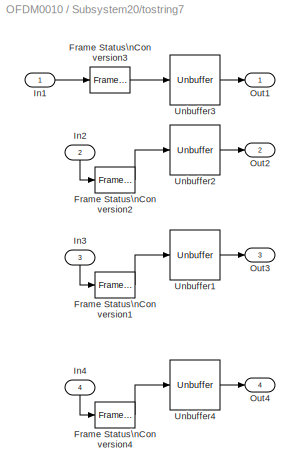
BLOCK [SubSystem] Subsystem20/tostring7
  FunctionWithSeparateData = off
  MaskHideContents = off
  MinAlgLoopOccurrences = off
  Opaque = off
  Ports = [4, 4]
  PropExecContextOutsideSubsystem = off
  RTWSystemCode = Auto
  RequestExecContextInheritance = off
  SID = 284
BLOCK [Reference] Subsystem20/tostring7/Frame Status\nConversion1  REF=dspobslib/Frame Status\nConversion
  FunctionWithSeparateData = off
  GeneratePreprocessorConditionals = off
  Ports = [1, 1]
  RTWMemSecDataConstants = Inherit from model
  RTWMemSecDataInternal = Inherit from model
  RTWMemSecDataParameters = Inherit from model
  RTWMemSecFuncExecute = Inherit from model
  RTWMemSecFuncInitTerm = Inherit from model
  SID = 294
  ShowPortLabels = none
  SourceBlock = dspobslib/Frame Status\nConversion
  SourceType = Frame Status Conversion
  SystemSampleTime = -1
  growRefPort = off
  outframe = Sample-based
BLOCK [Reference] Subsystem20/tostring7/Frame Status\nConversion2  REF=dspobslib/Frame Status\nConversion
  FunctionWithSeparateData = off
  GeneratePreprocessorConditionals = off
  Ports = [1, 1]
  RTWMemSecDataConstants = Inherit from model
  RTWMemSecDataInternal = Inherit from model
  RTWMemSecDataParameters = Inherit from model
  RTWMemSecFuncExecute = Inherit from model
  RTWMemSecFuncInitTerm = Inherit from model
  SID = 287
  ShowPortLabels = none
  SourceBlock = dspobslib/Frame Status\nConversion
  SourceType = Frame Status Conversion
  SystemSampleTime = -1
  growRefPort = off
  outframe = Sample-based
BLOCK [Reference] Subsystem20/tostring7/Frame Status\nConversion3  REF=dspobslib/Frame Status\nConversion
  FunctionWithSeparateData = off
  GeneratePreprocessorConditionals = off
  Ports = [1, 1]
  RTWMemSecDataConstants = Inherit from model
  RTWMemSecDataInternal = Inherit from model
  RTWMemSecDataParameters = Inherit from model
  RTWMemSecFuncExecute = Inherit from model
  RTWMemSecFuncInitTerm = Inherit from model
  SID = 288
  ShowPortLabels = none
  SourceBlock = dspobslib/Frame Status\nConversion
  SourceType = Frame Status Conversion
  SystemSampleTime = -1
  growRefPort = off
  outframe = Sample-based
BLOCK [Reference] Subsystem20/tostring7/Frame Status\nConversion4  REF=dspobslib/Frame Status\nConversion
  FunctionWithSeparateData = off
  GeneratePreprocessorConditionals = off
  Ports = [1, 1]
  RTWMemSecDataConstants = Inherit from model
  RTWMemSecDataInternal = Inherit from model
  RTWMemSecDataParameters = Inherit from model
  RTWMemSecFuncExecute = Inherit from model
  RTWMemSecFuncInitTerm = Inherit from model
  SID = 298
  ShowPortLabels = none
  SourceBlock = dspobslib/Frame Status\nConversion
  SourceType = Frame Status Conversion
  SystemSampleTime = -1
  growRefPort = off
  outframe = Sample-based
BLOCK [Inport] Subsystem20/tostring7/In1
  IconDisplay = Port number
  SID = 285
BLOCK [Inport] Subsystem20/tostring7/In2
  IconDisplay = Port number
  Port = 2
  SID = 286
BLOCK [Inport] Subsystem20/tostring7/In3
  IconDisplay = Port number
  Port = 3
  SID = 293
BLOCK [Inport] Subsystem20/tostring7/In4
  IconDisplay = Port number
  Port = 4
  SID = 297
BLOCK [Outport] Subsystem20/tostring7/Out1
  IconDisplay = Port number
  SID = 291
BLOCK [Outport] Subsystem20/tostring7/Out2
  IconDisplay = Port number
  Port = 2
  SID = 292
BLOCK [Outport] Subsystem20/tostring7/Out3
  IconDisplay = Port number
  Port = 3
  SID = 296
BLOCK [Outport] Subsystem20/tostring7/Out4
  IconDisplay = Port number
  Port = 4
  SID = 300
BLOCK [Unbuffer] Subsystem20/tostring7/Unbuffer1
  Ports = [1, 1]
  SID = 295
  SampleBasedProcessing = Same as frame based
BLOCK [Unbuffer] Subsystem20/tostring7/Unbuffer2
  Ports = [1, 1]
  SID = 289
  SampleBasedProcessing = Same as frame based
BLOCK [Unbuffer] Subsystem20/tostring7/Unbuffer3
  Ports = [1, 1]
  SID = 290
  SampleBasedProcessing = Same as frame based
BLOCK [Unbuffer] Subsystem20/tostring7/Unbuffer4
  Ports = [1, 1]
  SID = 299
  SampleBasedProcessing = Same as frame based
BLOCK [SubSystem] Subsystem21
  FunctionWithSeparateData = off
  MaskHideContents = off
  MinAlgLoopOccurrences = off
  Opaque = off
  Ports = [1]
  PropExecContextOutsideSubsystem = off
  RTWSystemCode = Auto
  RequestExecContextInheritance = off
  SID = 373
BLOCK [ComplexToRealImag] Subsystem21/Complex to\nReal-Imag
  Output = Real and imag
  Ports = [1, 2]
  SID = 216
BLOCK [Inport] Subsystem21/In1
  IconDisplay = Port number
  SID = 374
BLOCK [Scope] Subsystem21/Scope3
  DataFormat = StructureWithTime
  Floating = off
  NumInputPorts = 2
  Ports = [2]
  SID = 226
  SampleTime = 0
  SaveName = ScopeData3
  YMax = 5~5
  YMin = -5~-5
BLOCK [SubSystem] Subsystem21/tostring4
  FunctionWithSeparateData = off
  MaskHideContents = off
  MinAlgLoopOccurrences = off
  Opaque = off
  Ports = [2, 2]
  PropExecContextOutsideSubsystem = off
  RTWSystemCode = Auto
  RequestExecContextInheritance = off
  SID = 217
BLOCK [Reference] Subsystem21/tostring4/Frame Status\nConversion2  REF=dspobslib/Frame Status\nConversion
  FunctionWithSeparateData = off
  GeneratePreprocessorConditionals = off
  Ports = [1, 1]
  RTWMemSecDataConstants = Inherit from model
  RTWMemSecDataInternal = Inherit from model
  RTWMemSecDataParameters = Inherit from model
  RTWMemSecFuncExecute = Inherit from model
  RTWMemSecFuncInitTerm = Inherit from model
  SID = 220
  ShowPortLabels = none
  SourceBlock = dspobslib/Frame Status\nConversion
  SourceType = Frame Status Conversion
  SystemSampleTime = -1
  growRefPort = off
  outframe = Sample-based
BLOCK [Reference] Subsystem21/tostring4/Frame Status\nConversion3  REF=dspobslib/Frame Status\nConversion
  FunctionWithSeparateData = off
  GeneratePreprocessorConditionals = off
  Ports = [1, 1]
  RTWMemSecDataConstants = Inherit from model
  RTWMemSecDataInternal = Inherit from model
  RTWMemSecDataParameters = Inherit from model
  RTWMemSecFuncExecute = Inherit from model
  RTWMemSecFuncInitTerm = Inherit from model
  SID = 221
  ShowPortLabels = none
  SourceBlock = dspobslib/Frame Status\nConversion
  SourceType = Frame Status Conversion
  SystemSampleTime = -1
  growRefPort = off
  outframe = Sample-based
BLOCK [Inport] Subsystem21/tostring4/In1
  IconDisplay = Port number
  SID = 218
BLOCK [Inport] Subsystem21/tostring4/In2
  IconDisplay = Port number
  Port = 2
  SID = 219
BLOCK [Outport] Subsystem21/tostring4/Out1
  IconDisplay = Port number
  SID = 224
BLOCK [Outport] Subsystem21/tostring4/Out2
  IconDisplay = Port number
  Port = 2
  SID = 225
BLOCK [Unbuffer] Subsystem21/tostring4/Unbuffer2
  Ports = [1, 1]
  SID = 222
  SampleBasedProcessing = Same as frame based
BLOCK [Unbuffer] Subsystem21/tostring4/Unbuffer3
  Ports = [1, 1]
  SID = 223
  SampleBasedProcessing = Same as frame based
BLOCK [SubSystem] Subsystem22
  FunctionWithSeparateData = off
  MaskHideContents = off
  MinAlgLoopOccurrences = off
  Opaque = off
  Ports = [1]
  PropExecContextOutsideSubsystem = off
  RTWSystemCode = Auto
  RequestExecContextInheritance = off
  SID = 375
BLOCK [Inport] Subsystem22/In1
  IconDisplay = Port number
  SID = 376
BLOCK [Scope] Subsystem22/Scope2
  DataFormat = StructureWithTime
  Floating = off
  NumInputPorts = 1
  Ports = [1]
  SID = 206
  SampleTime = 0
  SaveName = ScopeData2
BLOCK [SubSystem] Subsystem22/tostring3
  FunctionWithSeparateData = off
  MaskHideContents = off
  MinAlgLoopOccurrences = off
  Opaque = off
  Ports = [1, 1]
  PropExecContextOutsideSubsystem = off
  RTWSystemCode = Auto
  RequestExecContextInheritance = off
  SID = 207
BLOCK [Reference] Subsystem22/tostring3/Frame Status\nConversion1  REF=dspobslib/Frame Status\nConversion
  FunctionWithSeparateData = off
  GeneratePreprocessorConditionals = off
  Ports = [1, 1]
  RTWMemSecDataConstants = Inherit from model
  RTWMemSecDataInternal = Inherit from model
  RTWMemSecDataParameters = Inherit from model
  RTWMemSecFuncExecute = Inherit from model
  RTWMemSecFuncInitTerm = Inherit from model
  SID = 209
  ShowPortLabels = none
  SourceBlock = dspobslib/Frame Status\nConversion
  SourceType = Frame Status Conversion
  SystemSampleTime = -1
  growRefPort = off
  outframe = Sample-based
BLOCK [Inport] Subsystem22/tostring3/In1
  IconDisplay = Port number
  SID = 208
BLOCK [Outport] Subsystem22/tostring3/Out1
  IconDisplay = Port number
  SID = 211
BLOCK [Unbuffer] Subsystem22/tostring3/Unbuffer1
  Ports = [1, 1]
  SID = 210
  SampleBasedProcessing = Same as frame based
BLOCK [SubSystem] Subsystem23
  FunctionWithSeparateData = off
  MaskHideContents = off
  MinAlgLoopOccurrences = off
  Opaque = off
  Ports = [2]
  PropExecContextOutsideSubsystem = off
  RTWSystemCode = Auto
  RequestExecContextInheritance = off
  SID = 377
BLOCK [Inport] Subsystem23/In1
  IconDisplay = Port number
  SID = 378
BLOCK [Inport] Subsystem23/In2
  IconDisplay = Port number
  Port = 2
  SID = 379
BLOCK [Scope] Subsystem23/Scope
  DataFormat = StructureWithTime
  Floating = off
  NumInputPorts = 2
  Ports = [2]
  SID = 162
  SampleTime = 0
  YMax = 5~5
  YMin = -5~-5
BLOCK [SubSystem] Subsystem23/tostring
  FunctionWithSeparateData = off
  MaskHideContents = off
  MinAlgLoopOccurrences = off
  Opaque = off
  Ports = [1, 1]
  PropExecContextOutsideSubsystem = off
  RTWSystemCode = Auto
  RequestExecContextInheritance = off
  SID = 168
BLOCK [Reference] Subsystem23/tostring/Frame Status\nConversion5  REF=dspobslib/Frame Status\nConversion
  FunctionWithSeparateData = off
  GeneratePreprocessorConditionals = off
  Ports = [1, 1]
  RTWMemSecDataConstants = Inherit from model
  RTWMemSecDataInternal = Inherit from model
  RTWMemSecDataParameters = Inherit from model
  RTWMemSecFuncExecute = Inherit from model
  RTWMemSecFuncInitTerm = Inherit from model
  SID = 158
  ShowPortLabels = none
  SourceBlock = dspobslib/Frame Status\nConversion
  SourceType = Frame Status Conversion
  SystemSampleTime = -1
  growRefPort = off
  outframe = Sample-based
BLOCK [Inport] Subsystem23/tostring/In1
  IconDisplay = Port number
  SID = 169
BLOCK [Outport] Subsystem23/tostring/Out1
  IconDisplay = Port number
  SID = 170
BLOCK [Unbuffer] Subsystem23/tostring/Unbuffer
  Ports = [1, 1]
  SID = 159
  SampleBasedProcessing = Same as frame based
BLOCK [SubSystem] Subsystem23/tostring1
  FunctionWithSeparateData = off
  MaskHideContents = off
  MinAlgLoopOccurrences = off
  Opaque = off
  Ports = [1, 1]
  PropExecContextOutsideSubsystem = off
  RTWSystemCode = Auto
  RequestExecContextInheritance = off
  SID = 171
BLOCK [Reference] Subsystem23/tostring1/Frame Status\nConversion1  REF=dspobslib/Frame Status\nConversion
  FunctionWithSeparateData = off
  GeneratePreprocessorConditionals = off
  Ports = [1, 1]
  RTWMemSecDataConstants = Inherit from model
  RTWMemSecDataInternal = Inherit from model
  RTWMemSecDataParameters = Inherit from model
  RTWMemSecFuncExecute = Inherit from model
  RTWMemSecFuncInitTerm = Inherit from model
  SID = 160
  ShowPortLabels = none
  SourceBlock = dspobslib/Frame Status\nConversion
  SourceType = Frame Status Conversion
  SystemSampleTime = -1
  growRefPort = off
  outframe = Sample-based
BLOCK [Inport] Subsystem23/tostring1/In1
  IconDisplay = Port number
  SID = 172
BLOCK [Outport] Subsystem23/tostring1/Out1
  IconDisplay = Port number
  SID = 173
BLOCK [Unbuffer] Subsystem23/tostring1/Unbuffer1
  Ports = [1, 1]
  SID = 161
  SampleBasedProcessing = Same as frame based
BLOCK [SubSystem] Subsystem24
  FunctionWithSeparateData = off
  MaskHideContents = off
  MinAlgLoopOccurrences = off
  Opaque = off
  Ports = [2]
  PropExecContextOutsideSubsystem = off
  RTWSystemCode = Auto
  RequestExecContextInheritance = off
  SID = 380
BLOCK [Inport] Subsystem24/In1
  IconDisplay = Port number
  SID = 381
BLOCK [Inport] Subsystem24/In2
  IconDisplay = Port number
  Port = 2
  SID = 382
BLOCK [Scope] Subsystem24/Scope1
  DataFormat = StructureWithTime
  Floating = off
  NumInputPorts = 2
  Ports = [2]
  SID = 167
  SampleTime = 0
  SaveName = ScopeData1
  YMax = 5~5
  YMin = -5~-5
BLOCK [SubSystem] Subsystem24/tostring2
  FunctionWithSeparateData = off
  MaskHideContents = off
  MinAlgLoopOccurrences = off
  Opaque = off
  Ports = [2, 2]
  PropExecContextOutsideSubsystem = off
  RTWSystemCode = Auto
  RequestExecContextInheritance = off
  SID = 177
BLOCK [Reference] Subsystem24/tostring2/Frame Status\nConversion2  REF=dspobslib/Frame Status\nConversion
  FunctionWithSeparateData = off
  GeneratePreprocessorConditionals = off
  Ports = [1, 1]
  RTWMemSecDataConstants = Inherit from model
  RTWMemSecDataInternal = Inherit from model
  RTWMemSecDataParameters = Inherit from model
  RTWMemSecFuncExecute = Inherit from model
  RTWMemSecFuncInitTerm = Inherit from model
  SID = 163
  ShowPortLabels = none
  SourceBlock = dspobslib/Frame Status\nConversion
  SourceType = Frame Status Conversion
  SystemSampleTime = -1
  growRefPort = off
  outframe = Sample-based
BLOCK [Reference] Subsystem24/tostring2/Frame Status\nConversion3  REF=dspobslib/Frame Status\nConversion
  FunctionWithSeparateData = off
  GeneratePreprocessorConditionals = off
  Ports = [1, 1]
  RTWMemSecDataConstants = Inherit from model
  RTWMemSecDataInternal = Inherit from model
  RTWMemSecDataParameters = Inherit from model
  RTWMemSecFuncExecute = Inherit from model
  RTWMemSecFuncInitTerm = Inherit from model
  SID = 165
  ShowPortLabels = none
  SourceBlock = dspobslib/Frame Status\nConversion
  SourceType = Frame Status Conversion
  SystemSampleTime = -1
  growRefPort = off
  outframe = Sample-based
BLOCK [Inport] Subsystem24/tostring2/In1
  IconDisplay = Port number
  SID = 178
BLOCK [Inport] Subsystem24/tostring2/In2
  IconDisplay = Port number
  Port = 2
  SID = 181
BLOCK [Outport] Subsystem24/tostring2/Out1
  IconDisplay = Port number
  SID = 179
BLOCK [Outport] Subsystem24/tostring2/Out2
  IconDisplay = Port number
  Port = 2
  SID = 180
BLOCK [Unbuffer] Subsystem24/tostring2/Unbuffer2
  Ports = [1, 1]
  SID = 164
  SampleBasedProcessing = Same as frame based
BLOCK [Unbuffer] Subsystem24/tostring2/Unbuffer3
  Ports = [1, 1]
  SID = 166
  SampleBasedProcessing = Same as frame based
BLOCK [SubSystem] Subsystem25
  FunctionWithSeparateData = off
  MaskHideContents = off
  MinAlgLoopOccurrences = off
  Opaque = off
  Ports = [1]
  PropExecContextOutsideSubsystem = off
  RTWSystemCode = Auto
  RequestExecContextInheritance = off
  SID = 479
BLOCK [ComplexToRealImag] Subsystem25/Complex to\nReal-Imag7
  Output = Real and imag
  Ports = [1, 2]
  SID = 481
BLOCK [Inport] Subsystem25/In1
  IconDisplay = Port number
  SID = 480
BLOCK [Scope] Subsystem25/Scope7
  DataFormat = StructureWithTime
  Floating = off
  NumInputPorts = 2
  Ports = [2]
  SID = 482
  SampleTime = 0
  SaveName = ScopeData11
  YMax = 5~5
  YMin = -5~-5
BLOCK [SubSystem] Subsystem25/tostring9
  FunctionWithSeparateData = off
  MaskHideContents = off
  MinAlgLoopOccurrences = off
  Opaque = off
  Ports = [2, 2]
  PropExecContextOutsideSubsystem = off
  RTWSystemCode = Auto
  RequestExecContextInheritance = off
  SID = 483
BLOCK [Reference] Subsystem25/tostring9/Frame Status\nConversion2  REF=dspobslib/Frame Status\nConversion
  FunctionWithSeparateData = off
  GeneratePreprocessorConditionals = off
  Ports = [1, 1]
  RTWMemSecDataConstants = Inherit from model
  RTWMemSecDataInternal = Inherit from model
  RTWMemSecDataParameters = Inherit from model
  RTWMemSecFuncExecute = Inherit from model
  RTWMemSecFuncInitTerm = Inherit from model
  SID = 486
  ShowPortLabels = none
  SourceBlock = dspobslib/Frame Status\nConversion
  SourceType = Frame Status Conversion
  SystemSampleTime = -1
  growRefPort = off
  outframe = Sample-based
BLOCK [Reference] Subsystem25/tostring9/Frame Status\nConversion3  REF=dspobslib/Frame Status\nConversion
  FunctionWithSeparateData = off
  GeneratePreprocessorConditionals = off
  Ports = [1, 1]
  RTWMemSecDataConstants = Inherit from model
  RTWMemSecDataInternal = Inherit from model
  RTWMemSecDataParameters = Inherit from model
  RTWMemSecFuncExecute = Inherit from model
  RTWMemSecFuncInitTerm = Inherit from model
  SID = 487
  ShowPortLabels = none
  SourceBlock = dspobslib/Frame Status\nConversion
  SourceType = Frame Status Conversion
  SystemSampleTime = -1
  growRefPort = off
  outframe = Sample-based
BLOCK [Inport] Subsystem25/tostring9/In1
  IconDisplay = Port number
  SID = 484
BLOCK [Inport] Subsystem25/tostring9/In2
  IconDisplay = Port number
  Port = 2
  SID = 485
BLOCK [Outport] Subsystem25/tostring9/Out1
  IconDisplay = Port number
  SID = 490
BLOCK [Outport] Subsystem25/tostring9/Out2
  IconDisplay = Port number
  Port = 2
  SID = 491
BLOCK [Unbuffer] Subsystem25/tostring9/Unbuffer2
  Ports = [1, 1]
  SID = 488
  SampleBasedProcessing = Same as frame based
BLOCK [Unbuffer] Subsystem25/tostring9/Unbuffer3
  Ports = [1, 1]
  SID = 489
  SampleBasedProcessing = Same as frame based
BLOCK [SubSystem] Subsystem26
  FunctionWithSeparateData = off
  MaskHideContents = off
  MinAlgLoopOccurrences = off
  Opaque = off
  Ports = [1]
  PropExecContextOutsideSubsystem = off
  RTWSystemCode = Auto
  RequestExecContextInheritance = off
  SID = 492
BLOCK [ComplexToRealImag] Subsystem26/Complex to\nReal-Imag7
  Output = Real and imag
  Ports = [1, 2]
  SID = 494
BLOCK [Inport] Subsystem26/In1
  IconDisplay = Port number
  SID = 493
BLOCK [Scope] Subsystem26/Scope7
  DataFormat = StructureWithTime
  Floating = off
  NumInputPorts = 2
  Ports = [2]
  SID = 495
  SampleTime = 0
  SaveName = ScopeData11
  YMax = 5~5
  YMin = -5~-5
BLOCK [SubSystem] Subsystem26/tostring9
  FunctionWithSeparateData = off
  MaskHideContents = off
  MinAlgLoopOccurrences = off
  Opaque = off
  Ports = [2, 2]
  PropExecContextOutsideSubsystem = off
  RTWSystemCode = Auto
  RequestExecContextInheritance = off
  SID = 496
BLOCK [Reference] Subsystem26/tostring9/Frame Status\nConversion2  REF=dspobslib/Frame Status\nConversion
  FunctionWithSeparateData = off
  GeneratePreprocessorConditionals = off
  Ports = [1, 1]
  RTWMemSecDataConstants = Inherit from model
  RTWMemSecDataInternal = Inherit from model
  RTWMemSecDataParameters = Inherit from model
  RTWMemSecFuncExecute = Inherit from model
  RTWMemSecFuncInitTerm = Inherit from model
  SID = 499
  ShowPortLabels = none
  SourceBlock = dspobslib/Frame Status\nConversion
  SourceType = Frame Status Conversion
  SystemSampleTime = -1
  growRefPort = off
  outframe = Sample-based
BLOCK [Reference] Subsystem26/tostring9/Frame Status\nConversion3  REF=dspobslib/Frame Status\nConversion
  FunctionWithSeparateData = off
  GeneratePreprocessorConditionals = off
  Ports = [1, 1]
  RTWMemSecDataConstants = Inherit from model
  RTWMemSecDataInternal = Inherit from model
  RTWMemSecDataParameters = Inherit from model
  RTWMemSecFuncExecute = Inherit from model
  RTWMemSecFuncInitTerm = Inherit from model
  SID = 500
  ShowPortLabels = none
  SourceBlock = dspobslib/Frame Status\nConversion
  SourceType = Frame Status Conversion
  SystemSampleTime = -1
  growRefPort = off
  outframe = Sample-based
BLOCK [Inport] Subsystem26/tostring9/In1
  IconDisplay = Port number
  SID = 497
BLOCK [Inport] Subsystem26/tostring9/In2
  IconDisplay = Port number
  Port = 2
  SID = 498
BLOCK [Outport] Subsystem26/tostring9/Out1
  IconDisplay = Port number
  SID = 503
BLOCK [Outport] Subsystem26/tostring9/Out2
  IconDisplay = Port number
  Port = 2
  SID = 504
BLOCK [Unbuffer] Subsystem26/tostring9/Unbuffer2
  Ports = [1, 1]
  SID = 501
  SampleBasedProcessing = Same as frame based
BLOCK [Unbuffer] Subsystem26/tostring9/Unbuffer3
  Ports = [1, 1]
  SID = 502
  SampleBasedProcessing = Same as frame based
BLOCK [SubSystem] Subsystem3
  FunctionWithSeparateData = off
  MaskDisplay = disp('S/P')
  MaskHideContents = off
  MaskIconFrame = on
  MaskIconOpaque = on
  MaskIconRotate = none
  MaskIconUnits = autoscale
  MaskPortRotate = default
  MinAlgLoopOccurrences = off
  Opaque = off
  Ports = [1, 1]
  PropExecContextOutsideSubsystem = off
  RTWSystemCode = Auto
  RequestExecContextInheritance = off
  SID = 84
BLOCK [Buffer] Subsystem3/Buffer
  N = 180
  SID = 86
BLOCK [Inport] Subsystem3/In1
  IconDisplay = Port number
  SID = 85
BLOCK [Outport] Subsystem3/Out1
  IconDisplay = Port number
  SID = 87
BLOCK [SubSystem] Subsystem4
  FunctionWithSeparateData = off
  MaskDisplay = disp('Channel\\nCompensation')
  MaskHideContents = off
  MaskIconFrame = on
  MaskIconOpaque = on
  MaskIconRotate = none
  MaskIconUnits = autoscale
  MaskPortRotate = default
  MinAlgLoopOccurrences = off
  Opaque = off
  Ports = [2, 1]
  PropExecContextOutsideSubsystem = off
  RTWSystemCode = Auto
  RequestExecContextInheritance = off
  SID = 88
BLOCK [Reference] Subsystem4/Frame Status\nConversion5  REF=dspobslib/Frame Status\nConversion
  FunctionWithSeparateData = off
  GeneratePreprocessorConditionals = off
  Ports = [1, 1]
  RTWMemSecDataConstants = Inherit from model
  RTWMemSecDataInternal = Inherit from model
  RTWMemSecDataParameters = Inherit from model
  RTWMemSecFuncExecute = Inherit from model
  RTWMemSecFuncInitTerm = Inherit from model
  SID = 91
  ShowPortLabels = none
  SourceBlock = dspobslib/Frame Status\nConversion
  SourceType = Frame Status Conversion
  SystemSampleTime = -1
  growRefPort = off
  outframe = Frame-based
BLOCK [Inport] Subsystem4/In1
  IconDisplay = Port number
  SID = 89
BLOCK [Inport] Subsystem4/In2
  IconDisplay = Port number
  Port = 2
  SID = 90
BLOCK [Outport] Subsystem4/Out1
  IconDisplay = Port number
  SID = 93
BLOCK [Product] Subsystem4/Product
  InputSameDT = off
  Ports = [2, 1]
  RndMeth = Floor
  SID = 92
BLOCK [SubSystem] Subsystem5
  FunctionWithSeparateData = off
  MaskDisplay = disp('Channel\\nEstimator')
  MaskHideContents = off
  MaskIconFrame = on
  MaskIconOpaque = on
  MaskIconRotate = none
  MaskIconUnits = autoscale
  MaskPortRotate = default
  MinAlgLoopOccurrences = off
  Opaque = off
  Ports = [1, 1]
  PropExecContextOutsideSubsystem = off
  RTWSystemCode = Auto
  RequestExecContextInheritance = off
  SID = 94
BLOCK [Reference] Subsystem5/Frame Status\nConversion2  REF=dspobslib/Frame Status\nConversion
  FunctionWithSeparateData = off
  GeneratePreprocessorConditionals = off
  Ports = [1, 1]
  RTWMemSecDataConstants = Inherit from model
  RTWMemSecDataInternal = Inherit from model
  RTWMemSecDataParameters = Inherit from model
  RTWMemSecFuncExecute = Inherit from model
  RTWMemSecFuncInitTerm = Inherit from model
  SID = 96
  ShowPortLabels = none
  SourceBlock = dspobslib/Frame Status\nConversion
  SourceType = Frame Status Conversion
  SystemSampleTime = -1
  growRefPort = off
  outframe = Frame-based
BLOCK [Reference] Subsystem5/Frame Status\nConversion4  REF=dspobslib/Frame Status\nConversion
  FunctionWithSeparateData = off
  GeneratePreprocessorConditionals = off
  Ports = [1, 1]
  RTWMemSecDataConstants = Inherit from model
  RTWMemSecDataInternal = Inherit from model
  RTWMemSecDataParameters = Inherit from model
  RTWMemSecFuncExecute = Inherit from model
  RTWMemSecFuncInitTerm = Inherit from model
  SID = 97
  ShowPortLabels = none
  SourceBlock = dspobslib/Frame Status\nConversion
  SourceType = Frame Status Conversion
  SystemSampleTime = -1
  growRefPort = off
  outframe = Frame-based
BLOCK [Inport] Subsystem5/In1
  IconDisplay = Port number
  SID = 95
BLOCK [Outport] Subsystem5/Out1
  IconDisplay = Port number
  SID = 112
BLOCK [Product] Subsystem5/Product
  InputSameDT = off
  Ports = [2, 1]
  RndMeth = Floor
  SID = 98
BLOCK [Step] Subsystem5/Step2
  SID = 99
  SampleTime = 16e-5/2
  Time = 16e-5/2
BLOCK [SubSystem] Subsystem5/Subsystem
  FunctionWithSeparateData = off
  MaskHideContents = off
  MinAlgLoopOccurrences = off
  Opaque = off
  Ports = [1, 1, 1]
  PropExecContextOutsideSubsystem = off
  RTWSystemCode = Auto
  RequestExecContextInheritance = off
  SID = 100
BLOCK [EnablePort] Subsystem5/Subsystem/Enable
  Ports = []
  SID = 102
BLOCK [Inport] Subsystem5/Subsystem/In1
  IconDisplay = Port number
  SID = 101
BLOCK [Math] Subsystem5/Subsystem/Math\nFunction
  Operator = reciprocal
  Ports = [1, 1]
  SID = 103
BLOCK [Outport] Subsystem5/Subsystem/Out1
  IconDisplay = Port number
  SID = 104
BLOCK [SubSystem] Subsystem5/Subsystem16
  FunctionWithSeparateData = off
  MaskHideContents = off
  MinAlgLoopOccurrences = off
  Opaque = off
  Ports = [2]
  PropExecContextOutsideSubsystem = off
  RTWSystemCode = Auto
  RequestExecContextInheritance = off
  SID = 456
BLOCK [ComplexToRealImag] Subsystem5/Subsystem16/Complex to\nReal-Imag5
  Output = Real and imag
  Ports = [1, 2]
  SID = 459
BLOCK [ComplexToRealImag] Subsystem5/Subsystem16/Complex to\nReal-Imag6
  Output = Real and imag
  Ports = [1, 2]
  SID = 460
BLOCK [Inport] Subsystem5/Subsystem16/In1
  IconDisplay = Port number
  SID = 457
BLOCK [Inport] Subsystem5/Subsystem16/In2
  IconDisplay = Port number
  Port = 2
  SID = 458
BLOCK [Scope] Subsystem5/Subsystem16/Scope6
  DataFormat = StructureWithTime
  Floating = off
  NumInputPorts = 4
  Ports = [4]
  SID = 461
  SampleTime = 0
  SaveName = ScopeData10
  YMax = 5~5~5~5
  YMin = -5~-5~-5~-5
BLOCK [SubSystem] Subsystem5/Subsystem16/tostring8
  FunctionWithSeparateData = off
  MaskHideContents = off
  MinAlgLoopOccurrences = off
  Opaque = off
  Ports = [4, 4]
  PropExecContextOutsideSubsystem = off
  RTWSystemCode = Auto
  RequestExecContextInheritance = off
  SID = 462
BLOCK [Reference] Subsystem5/Subsystem16/tostring8/Frame Status\nConversion1  REF=dspobslib/Frame Status\nConversion
  FunctionWithSeparateData = off
  GeneratePreprocessorConditionals = off
  Ports = [1, 1]
  RTWMemSecDataConstants = Inherit from model
  RTWMemSecDataInternal = Inherit from model
  RTWMemSecDataParameters = Inherit from model
  RTWMemSecFuncExecute = Inherit from model
  RTWMemSecFuncInitTerm = Inherit from model
  SID = 467
  ShowPortLabels = none
  SourceBlock = dspobslib/Frame Status\nConversion
  SourceType = Frame Status Conversion
  SystemSampleTime = -1
  growRefPort = off
  outframe = Sample-based
BLOCK [Reference] Subsystem5/Subsystem16/tostring8/Frame Status\nConversion2  REF=dspobslib/Frame Status\nConversion
  FunctionWithSeparateData = off
  GeneratePreprocessorConditionals = off
  Ports = [1, 1]
  RTWMemSecDataConstants = Inherit from model
  RTWMemSecDataInternal = Inherit from model
  RTWMemSecDataParameters = Inherit from model
  RTWMemSecFuncExecute = Inherit from model
  RTWMemSecFuncInitTerm = Inherit from model
  SID = 468
  ShowPortLabels = none
  SourceBlock = dspobslib/Frame Status\nConversion
  SourceType = Frame Status Conversion
  SystemSampleTime = -1
  growRefPort = off
  outframe = Sample-based
BLOCK [Reference] Subsystem5/Subsystem16/tostring8/Frame Status\nConversion3  REF=dspobslib/Frame Status\nConversion
  FunctionWithSeparateData = off
  GeneratePreprocessorConditionals = off
  Ports = [1, 1]
  RTWMemSecDataConstants = Inherit from model
  RTWMemSecDataInternal = Inherit from model
  RTWMemSecDataParameters = Inherit from model
  RTWMemSecFuncExecute = Inherit from model
  RTWMemSecFuncInitTerm = Inherit from model
  SID = 469
  ShowPortLabels = none
  SourceBlock = dspobslib/Frame Status\nConversion
  SourceType = Frame Status Conversion
  SystemSampleTime = -1
  growRefPort = off
  outframe = Sample-based
BLOCK [Reference] Subsystem5/Subsystem16/tostring8/Frame Status\nConversion4  REF=dspobslib/Frame Status\nConversion
  FunctionWithSeparateData = off
  GeneratePreprocessorConditionals = off
  Ports = [1, 1]
  RTWMemSecDataConstants = Inherit from model
  RTWMemSecDataInternal = Inherit from model
  RTWMemSecDataParameters = Inherit from model
  RTWMemSecFuncExecute = Inherit from model
  RTWMemSecFuncInitTerm = Inherit from model
  SID = 470
  ShowPortLabels = none
  SourceBlock = dspobslib/Frame Status\nConversion
  SourceType = Frame Status Conversion
  SystemSampleTime = -1
  growRefPort = off
  outframe = Sample-based
BLOCK [Inport] Subsystem5/Subsystem16/tostring8/In1
  IconDisplay = Port number
  SID = 463
BLOCK [Inport] Subsystem5/Subsystem16/tostring8/In2
  IconDisplay = Port number
  Port = 2
  SID = 464
BLOCK [Inport] Subsystem5/Subsystem16/tostring8/In3
  IconDisplay = Port number
  Port = 3
  SID = 465
BLOCK [Inport] Subsystem5/Subsystem16/tostring8/In4
  IconDisplay = Port number
  Port = 4
  SID = 466
BLOCK [Outport] Subsystem5/Subsystem16/tostring8/Out1
  IconDisplay = Port number
  SID = 475
BLOCK [Outport] Subsystem5/Subsystem16/tostring8/Out2
  IconDisplay = Port number
  Port = 2
  SID = 476
BLOCK [Outport] Subsystem5/Subsystem16/tostring8/Out3
  IconDisplay = Port number
  Port = 3
  SID = 477
BLOCK [Outport] Subsystem5/Subsystem16/tostring8/Out4
  IconDisplay = Port number
  Port = 4
  SID = 478
BLOCK [Unbuffer] Subsystem5/Subsystem16/tostring8/Unbuffer1
  Ports = [1, 1]
  SID = 471
  SampleBasedProcessing = Same as frame based
BLOCK [Unbuffer] Subsystem5/Subsystem16/tostring8/Unbuffer2
  Ports = [1, 1]
  SID = 472
  SampleBasedProcessing = Same as frame based
BLOCK [Unbuffer] Subsystem5/Subsystem16/tostring8/Unbuffer3
  Ports = [1, 1]
  SID = 473
  SampleBasedProcessing = Same as frame based
BLOCK [Unbuffer] Subsystem5/Subsystem16/tostring8/Unbuffer4
  Ports = [1, 1]
  SID = 474
  SampleBasedProcessing = Same as frame based
BLOCK [SubSystem] Subsystem5/Subsystem4
  FunctionWithSeparateData = off
  MaskHideContents = off
  MinAlgLoopOccurrences = off
  Opaque = off
  Ports = [0, 1, 1]
  PropExecContextOutsideSubsystem = off
  RTWSystemCode = Auto
  RequestExecContextInheritance = off
  SID = 105
  TreatAsAtomicUnit = on
BLOCK [EnablePort] Subsystem5/Subsystem4/Enable
  Ports = []
  SID = 106
BLOCK [Reference] Subsystem5/Subsystem4/Frame Status\nConversion2  REF=dspobslib/Frame Status\nConversion
  FunctionWithSeparateData = off
  GeneratePreprocessorConditionals = off
  Ports = [1, 1]
  RTWMemSecDataConstants = Inherit from model
  RTWMemSecDataInternal = Inherit from model
  RTWMemSecDataParameters = Inherit from model
  RTWMemSecFuncExecute = Inherit from model
  RTWMemSecFuncInitTerm = Inherit from model
  SID = 107
  ShowPortLabels = none
  SourceBlock = dspobslib/Frame Status\nConversion
  SourceType = Frame Status Conversion
  SystemSampleTime = -1
  growRefPort = off
  outframe = Frame-based
BLOCK [Math] Subsystem5/Subsystem4/Math\nFunction
  Operator = reciprocal
  Ports = [1, 1]
  SID = 108
BLOCK [Outport] Subsystem5/Subsystem4/Out1
  IconDisplay = Port number
  SID = 111
BLOCK [Reference] Subsystem5/Subsystem4/PN Sequence\nGenerator  REF=commseqgen2/PN Sequence\nGenerator
  Ports = [0, 1]
  SID = 109
  SourceBlock = commseqgen2/PN Sequence\nGenerator
  SourceType = PN Sequence Generator
  Ts = 16e-5/2/31
  bitPackDataSigned = off
  bitPackedOutDType = double
  bitPackedOutputs = off
  frameBased = on
  ini_sta = [0 0 0 0 0 1]
  maxOutSize = [10 1]
  maxOutSizeMode = Dialog parameter
  numPackedBits = 8
  outBitMaskSource = Dialog parameter
  outDataType = double
  outVarSiz = off
  poly = [1 0 0 0 0 1 1]
  reset = off
  sampPerFrame = 31
  shift = 0
BLOCK [SubSystem] Subsystem5/Subsystem4/Subsystem23
  FunctionWithSeparateData = off
  MaskHideContents = off
  MinAlgLoopOccurrences = off
  Opaque = off
  Ports = [2]
  PropExecContextOutsideSubsystem = off
  RTWSystemCode = Auto
  RequestExecContextInheritance = off
  SID = 428
BLOCK [Inport] Subsystem5/Subsystem4/Subsystem23/In1
  IconDisplay = Port number
  SID = 429
BLOCK [Inport] Subsystem5/Subsystem4/Subsystem23/In2
  IconDisplay = Port number
  Port = 2
  SID = 430
BLOCK [Scope] Subsystem5/Subsystem4/Subsystem23/Scope
  DataFormat = StructureWithTime
  Floating = off
  NumInputPorts = 2
  Ports = [2]
  SID = 431
  SampleTime = 0
  YMax = 5~5
  YMin = -5~-5
BLOCK [SubSystem] Subsystem5/Subsystem4/Subsystem23/tostring
  FunctionWithSeparateData = off
  MaskHideContents = off
  MinAlgLoopOccurrences = off
  Opaque = off
  Ports = [1, 1]
  PropExecContextOutsideSubsystem = off
  RTWSystemCode = Auto
  RequestExecContextInheritance = off
  SID = 432
BLOCK [Reference] Subsystem5/Subsystem4/Subsystem23/tostring/Frame Status\nConversion5  REF=dspobslib/Frame Status\nConversion
  FunctionWithSeparateData = off
  GeneratePreprocessorConditionals = off
  Ports = [1, 1]
  RTWMemSecDataConstants = Inherit from model
  RTWMemSecDataInternal = Inherit from model
  RTWMemSecDataParameters = Inherit from model
  RTWMemSecFuncExecute = Inherit from model
  RTWMemSecFuncInitTerm = Inherit from model
  SID = 434
  ShowPortLabels = none
  SourceBlock = dspobslib/Frame Status\nConversion
  SourceType = Frame Status Conversion
  SystemSampleTime = -1
  growRefPort = off
  outframe = Sample-based
BLOCK [Inport] Subsystem5/Subsystem4/Subsystem23/tostring/In1
  IconDisplay = Port number
  SID = 433
BLOCK [Outport] Subsystem5/Subsystem4/Subsystem23/tostring/Out1
  IconDisplay = Port number
  SID = 436
BLOCK [Unbuffer] Subsystem5/Subsystem4/Subsystem23/tostring/Unbuffer
  Ports = [1, 1]
  SID = 435
  SampleBasedProcessing = Same as frame based
BLOCK [SubSystem] Subsystem5/Subsystem4/Subsystem23/tostring1
  FunctionWithSeparateData = off
  MaskHideContents = off
  MinAlgLoopOccurrences = off
  Opaque = off
  Ports = [1, 1]
  PropExecContextOutsideSubsystem = off
  RTWSystemCode = Auto
  RequestExecContextInheritance = off
  SID = 437
BLOCK [Reference] Subsystem5/Subsystem4/Subsystem23/tostring1/Frame Status\nConversion1  REF=dspobslib/Frame Status\nConversion
  FunctionWithSeparateData = off
  GeneratePreprocessorConditionals = off
  Ports = [1, 1]
  RTWMemSecDataConstants = Inherit from model
  RTWMemSecDataInternal = Inherit from model
  RTWMemSecDataParameters = Inherit from model
  RTWMemSecFuncExecute = Inherit from model
  RTWMemSecFuncInitTerm = Inherit from model
  SID = 439
  ShowPortLabels = none
  SourceBlock = dspobslib/Frame Status\nConversion
  SourceType = Frame Status Conversion
  SystemSampleTime = -1
  growRefPort = off
  outframe = Sample-based
BLOCK [Inport] Subsystem5/Subsystem4/Subsystem23/tostring1/In1
  IconDisplay = Port number
  SID = 438
BLOCK [Outport] Subsystem5/Subsystem4/Subsystem23/tostring1/Out1
  IconDisplay = Port number
  SID = 441
BLOCK [Unbuffer] Subsystem5/Subsystem4/Subsystem23/tostring1/Unbuffer1
  Ports = [1, 1]
  SID = 440
  SampleBasedProcessing = Same as frame based
BLOCK [Reference] Subsystem5/Subsystem4/Unipolar to\nBipolar\nConverter  REF=commutil2/Unipolar to\nBipolar\nConverter
  FunctionWithSeparateData = off
  GeneratePreprocessorConditionals = off
  M = 2
  Ports = [1, 1]
  RTWMemSecDataConstants = Inherit from model
  RTWMemSecDataInternal = Inherit from model
  RTWMemSecDataParameters = Inherit from model
  RTWMemSecFuncExecute = Inherit from model
  RTWMemSecFuncInitTerm = Inherit from model
  SID = 110
  ShowPortLabels = FromPortIcon
  SourceBlock = commutil2/Unipolar to\nBipolar\nConverter
  SourceType = Unipolar to Bipolar Converter
  SystemSampleTime = -1
  dataType = Inherit via internal rule
  polarity = Positive
BLOCK [SubSystem] Subsystem6
  FunctionWithSeparateData = off
  MaskDisplay = disp('Training\\nSeparation')
  MaskHideContents = off
  MaskIconFrame = on
  MaskIconOpaque = on
  MaskIconRotate = none
  MaskIconUnits = autoscale
  MaskPortRotate = default
  MinAlgLoopOccurrences = off
  Opaque = off
  Ports = [1, 1]
  PropExecContextOutsideSubsystem = off
  RTWSystemCode = Auto
  RequestExecContextInheritance = off
  SID = 113
BLOCK [Inport] Subsystem6/In1
  IconDisplay = Port number
  SID = 114
BLOCK [Concatenate] Subsystem6/Matrix\nConcatenation1
  ConcatenateDimension = 2
  Mode = Multidimensional array
  Ports = [2, 1]
  SID = 115
BLOCK [Reference] Subsystem6/Multiport\nSelector1  REF=dspindex/Multiport\nSelector
  Ports = [1, 2]
  SID = 116
  SourceBlock = dspindex/Multiport\nSelector
  SourceType = Multiport Selector
  idxCellArray = {91:180,1:90}
  idxErrMode = Clip Index
  rowsOrCols = Rows
BLOCK [Outport] Subsystem6/Out1
  IconDisplay = Port number
  SID = 117
BLOCK [SubSystem] Subsystem7
  FunctionWithSeparateData = off
  MaskDisplay = disp('Training\\nInsertion')
  MaskHideContents = off
  MaskIconFrame = on
  MaskIconOpaque = on
  MaskIconRotate = none
  MaskIconUnits = autoscale
  MaskPortRotate = default
  MinAlgLoopOccurrences = off
  Opaque = off
  Ports = [1, 1]
  PropExecContextOutsideSubsystem = off
  RTWSystemCode = Auto
  RequestExecContextInheritance = off
  SID = 118
BLOCK [Reference] Subsystem7/Frame Status\nConversion  REF=dspobslib/Frame Status\nConversion
  FunctionWithSeparateData = off
  GeneratePreprocessorConditionals = off
  Ports = [1, 1]
  RTWMemSecDataConstants = Inherit from model
  RTWMemSecDataInternal = Inherit from model
  RTWMemSecDataParameters = Inherit from model
  RTWMemSecFuncExecute = Inherit from model
  RTWMemSecFuncInitTerm = Inherit from model
  SID = 120
  ShowPortLabels = none
  SourceBlock = dspobslib/Frame Status\nConversion
  SourceType = Frame Status Conversion
  SystemSampleTime = -1
  growRefPort = off
  outframe = Frame-based
BLOCK [Inport] Subsystem7/In1
  IconDisplay = Port number
  SID = 119
BLOCK [Concatenate] Subsystem7/Matrix\nConcatenation
  Mode = Multidimensional array
  Ports = [2, 1]
  SID = 121
BLOCK [Reference] Subsystem7/Multiport\nSelector  REF=dspindex/Multiport\nSelector
  Ports = [1, 2]
  SID = 122
  SourceBlock = dspindex/Multiport\nSelector
  SourceType = Multiport Selector
  idxCellArray = {1,2}
  idxErrMode = Clip Index
  rowsOrCols = Columns
BLOCK [Outport] Subsystem7/Out1
  IconDisplay = Port number
  SID = 123
BLOCK [SubSystem] Subsystem9
  FunctionWithSeparateData = off
  MaskDisplay = disp('16QAM')
  MaskHideContents = off
  MaskIconFrame = on
  MaskIconOpaque = on
  MaskIconRotate = none
  MaskIconUnits = autoscale
  MaskPortRotate = default
  MinAlgLoopOccurrences = off
  Opaque = off
  Ports = [1, 1]
  PropExecContextOutsideSubsystem = off
  RTWSystemCode = Auto
  RequestExecContextInheritance = off
  SID = 522
BLOCK [Reference] Subsystem9/Bit to Integer\nConverter  REF=commutil2/Bit to Integer\nConverter
  Ports = [1, 1]
  SID = 521
  SourceBlock = commutil2/Bit to Integer\nConverter
  SourceType = Bit to Integer Converter
  bitOrder = MSB first
  nbits = 4
  outDtype = double
  outDtypeSigned = Inherit via internal rule
  signedOutputValues = Unsigned
BLOCK [Reference] Subsystem9/General QAM\nModulator\nBaseband  REF=commdigbbndam3/General QAM\nModulator\nBaseband
  Ports = [1, 1]
  SID = 520
  SigCon = [exp(2*pi*i*[0:15]/16)]
  SourceBlock = commdigbbndam3/General QAM\nModulator\nBaseband
  SourceType = General QAM Modulator Baseband
  outDtype = double
  outFracLen = 15
  outFracLenMode = Best precision
  outUDDataType = sfix(16)
  outWordLen = 16
BLOCK [Inport] Subsystem9/In1
  IconDisplay = Port number
  SID = 523
BLOCK [Outport] Subsystem9/Out1
  IconDisplay = Port number
  SID = 524
LINE AWGN\nChannel1:1 -> Subsystem3:1
NET Bernoulli Random\nBinary Generator:1 -> Subsystem11:1, Subsystem14:1, Subsystem23:1
NET General QAM\nDemodulator\nBaseband:1 -> Subsystem12:1, Subsystem24:2
LINE Multipath Rayleigh\nFading Channel1:1 -> AWGN\nChannel1:1
LINE Subsystem/Complex to\nReal-Imag1:1 -> Subsystem/tostring1:1
LINE Subsystem/Complex to\nReal-Imag1:2 -> Subsystem/tostring1:2
LINE Subsystem/Complex to\nReal-Imag2:1 -> Subsystem/tostring2:1
LINE Subsystem/Complex to\nReal-Imag2:2 -> Subsystem/tostring2:2
LINE Subsystem/DSP\nConstant:1 -> Subsystem/Matrix\nConcatenation:2
LINE Subsystem/IFFT:1 -> Subsystem/Out1:1
LINE Subsystem/In1:1 -> Subsystem/Matrix\nConcatenation1:1
LINE Subsystem/In2:1 -> Subsystem/Multiport\nSelector:1
LINE Subsystem/Matrix\nConcatenation1:1 -> Subsystem/Subsystem1:1
NET Subsystem/Matrix\nConcatenation:1 -> Subsystem/Complex to\nReal-Imag2:1, Subsystem/Matrix\nConcatenation1:2
LINE Subsystem/Multiport\nSelector:1 -> Subsystem/Matrix\nConcatenation:1
LINE Subsystem/Multiport\nSelector:2 -> Subsystem/Matrix\nConcatenation:3
LINE Subsystem/Subsystem1/In1:1 -> Subsystem/Subsystem1/Zero Pad:1
LINE Subsystem/Subsystem1/Selector:1 -> Subsystem/Subsystem1/Out1:1
LINE Subsystem/Subsystem1/Zero Pad:1 -> Subsystem/Subsystem1/Selector:1
NET Subsystem/Subsystem1:1 -> Subsystem/Complex to\nReal-Imag1:1, Subsystem/IFFT:1
LINE Subsystem/tostring1/Frame Status\nConversion2:1 -> Subsystem/tostring1/Unbuffer2:1
LINE Subsystem/tostring1/Frame Status\nConversion3:1 -> Subsystem/tostring1/Unbuffer3:1
LINE Subsystem/tostring1/In1:1 -> Subsystem/tostring1/Frame Status\nConversion3:1
LINE Subsystem/tostring1/In2:1 -> Subsystem/tostring1/Frame Status\nConversion2:1
LINE Subsystem/tostring1/Unbuffer2:1 -> Subsystem/tostring1/Out2:1
LINE Subsystem/tostring1/Unbuffer3:1 -> Subsystem/tostring1/Out1:1
LINE Subsystem/tostring1:1 -> Subsystem/Scope1:1
LINE Subsystem/tostring1:2 -> Subsystem/Scope1:2
LINE Subsystem/tostring2/Frame Status\nConversion2:1 -> Subsystem/tostring2/Unbuffer2:1
LINE Subsystem/tostring2/Frame Status\nConversion3:1 -> Subsystem/tostring2/Unbuffer3:1
LINE Subsystem/tostring2/In1:1 -> Subsystem/tostring2/Frame Status\nConversion3:1
LINE Subsystem/tostring2/In2:1 -> Subsystem/tostring2/Frame Status\nConversion2:1
LINE Subsystem/tostring2/Unbuffer2:1 -> Subsystem/tostring2/Out2:1
LINE Subsystem/tostring2/Unbuffer3:1 -> Subsystem/tostring2/Out1:1
LINE Subsystem/tostring2:1 -> Subsystem/Scope2:1
LINE Subsystem/tostring2:2 -> Subsystem/Scope2:2
LINE Subsystem1/Complex to\nReal-Imag1:1 -> Subsystem1/tostring1:1
LINE Subsystem1/Complex to\nReal-Imag1:2 -> Subsystem1/tostring1:2
LINE Subsystem1/Complex to\nReal-Imag:1 -> Subsystem1/tostring4:1
LINE Subsystem1/Complex to\nReal-Imag:2 -> Subsystem1/tostring4:2
NET Subsystem1/FFT:1 -> Subsystem1/Complex to\nReal-Imag:1, Subsystem1/Selector1:1
LINE Subsystem1/Frame Status\nConversion:1 -> Subsystem1/Multiport\nSelector:1
LINE Subsystem1/In1:1 -> Subsystem1/FFT:1
LINE Subsystem1/Multiport\nSelector:1 -> Subsystem1/Out1:1
LINE Subsystem1/Multiport\nSelector:2 -> Subsystem1/Out2:1
NET Subsystem1/Selector1:1 -> Subsystem1/Complex to\nReal-Imag1:1, Subsystem1/Frame Status\nConversion:1
LINE Subsystem1/tostring1/Frame Status\nConversion2:1 -> Subsystem1/tostring1/Unbuffer2:1
LINE Subsystem1/tostring1/Frame Status\nConversion3:1 -> Subsystem1/tostring1/Unbuffer3:1
LINE Subsystem1/tostring1/In1:1 -> Subsystem1/tostring1/Frame Status\nConversion3:1
LINE Subsystem1/tostring1/In2:1 -> Subsystem1/tostring1/Frame Status\nConversion2:1
LINE Subsystem1/tostring1/Unbuffer2:1 -> Subsystem1/tostring1/Out2:1
LINE Subsystem1/tostring1/Unbuffer3:1 -> Subsystem1/tostring1/Out1:1
LINE Subsystem1/tostring1:1 -> Subsystem1/Scope1:1
LINE Subsystem1/tostring1:2 -> Subsystem1/Scope1:2
LINE Subsystem1/tostring4/Frame Status\nConversion2:1 -> Subsystem1/tostring4/Unbuffer2:1
LINE Subsystem1/tostring4/Frame Status\nConversion3:1 -> Subsystem1/tostring4/Unbuffer3:1
LINE Subsystem1/tostring4/In1:1 -> Subsystem1/tostring4/Frame Status\nConversion3:1
LINE Subsystem1/tostring4/In2:1 -> Subsystem1/tostring4/Frame Status\nConversion2:1
LINE Subsystem1/tostring4/Unbuffer2:1 -> Subsystem1/tostring4/Out2:1
LINE Subsystem1/tostring4/Unbuffer3:1 -> Subsystem1/tostring4/Out1:1
LINE Subsystem1/tostring4:1 -> Subsystem1/Scope3:1
LINE Subsystem1/tostring4:2 -> Subsystem1/Scope3:2
LINE Subsystem10/In1:1 -> Subsystem10/Selector2:1
LINE Subsystem10/Selector2:1 -> Subsystem10/Out1:1
NET Subsystem10:1 -> Discrete-Time\nScatter Plot\nScope1:1, General QAM\nDemodulator\nBaseband:1, Subsystem26:1
LINE Subsystem11/Binary-Input\nRS Encoder:1 -> Subsystem11/Out1:1
LINE Subsystem11/In1:1 -> Subsystem11/Binary-Input\nRS Encoder:1
NET Subsystem11:1 -> Subsystem24:1, Subsystem9:1
LINE Subsystem12/Binary-Output\nRS Decoder:1 -> Subsystem12/Out1:1
LINE Subsystem12/Binary-Output\nRS Decoder:2 -> Subsystem12/Terminator:1
LINE Subsystem12/In1:1 -> Subsystem12/Binary-Output\nRS Decoder:1
NET Subsystem12:1 -> Subsystem14:2, Subsystem23:2
LINE Subsystem13/PN Sequence\nGenerator:1 -> Subsystem13/Unipolar to\nBipolar\nConverter:1
LINE Subsystem13/Unipolar to\nBipolar\nConverter:1 -> Subsystem13/Out1:1
NET Subsystem13:1 -> Subsystem22:1, Subsystem:1
LINE Subsystem14/Error Rate Calculation:1 -> Subsystem14/Out1:1
LINE Subsystem14/In1:1 -> Subsystem14/QPSK\nModulator\nBaseband:1
LINE Subsystem14/In2:1 -> Subsystem14/QPSK\nModulator\nBaseband1:1
LINE Subsystem14/QPSK\nModulator\nBaseband1:1 -> Subsystem14/Error Rate Calculation:2
LINE Subsystem14/QPSK\nModulator\nBaseband:1 -> Subsystem14/Error Rate Calculation:1
LINE Subsystem14:1 -> Display:1
LINE Subsystem15/Complex to\nReal-Imag7:1 -> Subsystem15/tostring9:1
LINE Subsystem15/Complex to\nReal-Imag7:2 -> Subsystem15/tostring9:2
LINE Subsystem15/In1:1 -> Subsystem15/Complex to\nReal-Imag7:1
LINE Subsystem15/tostring9/Frame Status\nConversion2:1 -> Subsystem15/tostring9/Unbuffer2:1
LINE Subsystem15/tostring9/Frame Status\nConversion3:1 -> Subsystem15/tostring9/Unbuffer3:1
LINE Subsystem15/tostring9/In1:1 -> Subsystem15/tostring9/Frame Status\nConversion3:1
LINE Subsystem15/tostring9/In2:1 -> Subsystem15/tostring9/Frame Status\nConversion2:1
LINE Subsystem15/tostring9/Unbuffer2:1 -> Subsystem15/tostring9/Out2:1
LINE Subsystem15/tostring9/Unbuffer3:1 -> Subsystem15/tostring9/Out1:1
LINE Subsystem15/tostring9:1 -> Subsystem15/Scope7:1
LINE Subsystem15/tostring9:2 -> Subsystem15/Scope7:2
LINE Subsystem16/Complex to\nReal-Imag5:1 -> Subsystem16/tostring8:1
LINE Subsystem16/Complex to\nReal-Imag5:2 -> Subsystem16/tostring8:2
LINE Subsystem16/Complex to\nReal-Imag6:1 -> Subsystem16/tostring8:3
LINE Subsystem16/Complex to\nReal-Imag6:2 -> Subsystem16/tostring8:4
LINE Subsystem16/In1:1 -> Subsystem16/Complex to\nReal-Imag5:1
LINE Subsystem16/In2:1 -> Subsystem16/Complex to\nReal-Imag6:1
LINE Subsystem16/tostring8/Frame Status\nConversion1:1 -> Subsystem16/tostring8/Unbuffer1:1
LINE Subsystem16/tostring8/Frame Status\nConversion2:1 -> Subsystem16/tostring8/Unbuffer2:1
LINE Subsystem16/tostring8/Frame Status\nConversion3:1 -> Subsystem16/tostring8/Unbuffer3:1
LINE Subsystem16/tostring8/Frame Status\nConversion4:1 -> Subsystem16/tostring8/Unbuffer4:1
LINE Subsystem16/tostring8/In1:1 -> Subsystem16/tostring8/Frame Status\nConversion3:1
LINE Subsystem16/tostring8/In2:1 -> Subsystem16/tostring8/Frame Status\nConversion2:1
LINE Subsystem16/tostring8/In3:1 -> Subsystem16/tostring8/Frame Status\nConversion4:1
LINE Subsystem16/tostring8/In4:1 -> Subsystem16/tostring8/Frame Status\nConversion1:1
LINE Subsystem16/tostring8/Unbuffer1:1 -> Subsystem16/tostring8/Out4:1
LINE Subsystem16/tostring8/Unbuffer2:1 -> Subsystem16/tostring8/Out2:1
LINE Subsystem16/tostring8/Unbuffer3:1 -> Subsystem16/tostring8/Out1:1
LINE Subsystem16/tostring8/Unbuffer4:1 -> Subsystem16/tostring8/Out3:1
LINE Subsystem16/tostring8:1 -> Subsystem16/Scope6:1
LINE Subsystem16/tostring8:2 -> Subsystem16/Scope6:2
LINE Subsystem16/tostring8:3 -> Subsystem16/Scope6:3
LINE Subsystem16/tostring8:4 -> Subsystem16/Scope6:4
LINE Subsystem17/In1:1 -> Subsystem17/Selector3:1
LINE Subsystem17/Selector3:1 -> Subsystem17/Out1:1
NET Subsystem17:1 -> Subsystem19:1, Subsystem7:1
LINE Subsystem18/In1:1 -> Subsystem18/Selector4:1
LINE Subsystem18/Selector4:1 -> Subsystem18/Out1:1
NET Subsystem18:1 -> Subsystem1:1, Subsystem20:2
LINE Subsystem19/Complex to\nReal-Imag1:1 -> Subsystem19/tostring5:1
LINE Subsystem19/Complex to\nReal-Imag1:2 -> Subsystem19/tostring5:2
LINE Subsystem19/Complex to\nReal-Imag2:1 -> Subsystem19/tostring6:1
LINE Subsystem19/Complex to\nReal-Imag2:2 -> Subsystem19/tostring6:2
LINE Subsystem19/In1:1 -> Subsystem19/Complex to\nReal-Imag1:1
LINE Subsystem19/In2:1 -> Subsystem19/Complex to\nReal-Imag2:1
LINE Subsystem19/tostring5/Frame Status\nConversion2:1 -> Subsystem19/tostring5/Unbuffer2:1
LINE Subsystem19/tostring5/Frame Status\nConversion3:1 -> Subsystem19/tostring5/Unbuffer3:1
LINE Subsystem19/tostring5/In1:1 -> Subsystem19/tostring5/Frame Status\nConversion3:1
LINE Subsystem19/tostring5/In2:1 -> Subsystem19/tostring5/Frame Status\nConversion2:1
LINE Subsystem19/tostring5/Unbuffer2:1 -> Subsystem19/tostring5/Out2:1
LINE Subsystem19/tostring5/Unbuffer3:1 -> Subsystem19/tostring5/Out1:1
LINE Subsystem19/tostring5:1 -> Subsystem19/Scope4:1
LINE Subsystem19/tostring5:2 -> Subsystem19/Scope4:3
LINE Subsystem19/tostring6/Frame Status\nConversion2:1 -> Subsystem19/tostring6/Unbuffer2:1
LINE Subsystem19/tostring6/Frame Status\nConversion3:1 -> Subsystem19/tostring6/Unbuffer3:1
LINE Subsystem19/tostring6/In1:1 -> Subsystem19/tostring6/Frame Status\nConversion3:1
LINE Subsystem19/tostring6/In2:1 -> Subsystem19/tostring6/Frame Status\nConversion2:1
LINE Subsystem19/tostring6/Unbuffer2:1 -> Subsystem19/tostring6/Out2:1
LINE Subsystem19/tostring6/Unbuffer3:1 -> Subsystem19/tostring6/Out1:1
LINE Subsystem19/tostring6:1 -> Subsystem19/Scope4:2
LINE Subsystem19/tostring6:2 -> Subsystem19/Scope4:4
NET Subsystem1:1 -> Subsystem16:2, Subsystem4:1
NET Subsystem1:2 -> Subsystem16:1, Subsystem5:1
LINE Subsystem2/In1:1 -> Subsystem2/Unbuffer3:1
LINE Subsystem2/Unbuffer3:1 -> Subsystem2/Out1:1
LINE Subsystem20/Complex to\nReal-Imag3:1 -> Subsystem20/tostring7:1
LINE Subsystem20/Complex to\nReal-Imag3:2 -> Subsystem20/tostring7:2
LINE Subsystem20/Complex to\nReal-Imag4:1 -> Subsystem20/tostring7:3
LINE Subsystem20/Complex to\nReal-Imag4:2 -> Subsystem20/tostring7:4
LINE Subsystem20/In1:1 -> Subsystem20/Complex to\nReal-Imag3:1
LINE Subsystem20/In2:1 -> Subsystem20/Complex to\nReal-Imag4:1
LINE Subsystem20/tostring7/Frame Status\nConversion1:1 -> Subsystem20/tostring7/Unbuffer1:1
LINE Subsystem20/tostring7/Frame Status\nConversion2:1 -> Subsystem20/tostring7/Unbuffer2:1
LINE Subsystem20/tostring7/Frame Status\nConversion3:1 -> Subsystem20/tostring7/Unbuffer3:1
LINE Subsystem20/tostring7/Frame Status\nConversion4:1 -> Subsystem20/tostring7/Unbuffer4:1
LINE Subsystem20/tostring7/In1:1 -> Subsystem20/tostring7/Frame Status\nConversion3:1
LINE Subsystem20/tostring7/In2:1 -> Subsystem20/tostring7/Frame Status\nConversion2:1
LINE Subsystem20/tostring7/In3:1 -> Subsystem20/tostring7/Frame Status\nConversion1:1
LINE Subsystem20/tostring7/In4:1 -> Subsystem20/tostring7/Frame Status\nConversion4:1
LINE Subsystem20/tostring7/Unbuffer1:1 -> Subsystem20/tostring7/Out3:1
LINE Subsystem20/tostring7/Unbuffer2:1 -> Subsystem20/tostring7/Out2:1
LINE Subsystem20/tostring7/Unbuffer3:1 -> Subsystem20/tostring7/Out1:1
LINE Subsystem20/tostring7/Unbuffer4:1 -> Subsystem20/tostring7/Out4:1
LINE Subsystem20/tostring7:1 -> Subsystem20/Scope5:1
LINE Subsystem20/tostring7:2 -> Subsystem20/Scope5:3
LINE Subsystem20/tostring7:3 -> Subsystem20/Scope5:2
LINE Subsystem20/tostring7:4 -> Subsystem20/Scope5:4
LINE Subsystem21/Complex to\nReal-Imag:1 -> Subsystem21/tostring4:1
LINE Subsystem21/Complex to\nReal-Imag:2 -> Subsystem21/tostring4:2
LINE Subsystem21/In1:1 -> Subsystem21/Complex to\nReal-Imag:1
LINE Subsystem21/tostring4/Frame Status\nConversion2:1 -> Subsystem21/tostring4/Unbuffer2:1
LINE Subsystem21/tostring4/Frame Status\nConversion3:1 -> Subsystem21/tostring4/Unbuffer3:1
LINE Subsystem21/tostring4/In1:1 -> Subsystem21/tostring4/Frame Status\nConversion3:1
LINE Subsystem21/tostring4/In2:1 -> Subsystem21/tostring4/Frame Status\nConversion2:1
LINE Subsystem21/tostring4/Unbuffer2:1 -> Subsystem21/tostring4/Out2:1
LINE Subsystem21/tostring4/Unbuffer3:1 -> Subsystem21/tostring4/Out1:1
LINE Subsystem21/tostring4:1 -> Subsystem21/Scope3:1
LINE Subsystem21/tostring4:2 -> Subsystem21/Scope3:2
LINE Subsystem22/In1:1 -> Subsystem22/tostring3:1
LINE Subsystem22/tostring3/Frame Status\nConversion1:1 -> Subsystem22/tostring3/Unbuffer1:1
LINE Subsystem22/tostring3/In1:1 -> Subsystem22/tostring3/Frame Status\nConversion1:1
LINE Subsystem22/tostring3/Unbuffer1:1 -> Subsystem22/tostring3/Out1:1
LINE Subsystem22/tostring3:1 -> Subsystem22/Scope2:1
LINE Subsystem23/In1:1 -> Subsystem23/tostring:1
LINE Subsystem23/In2:1 -> Subsystem23/tostring1:1
LINE Subsystem23/tostring/Frame Status\nConversion5:1 -> Subsystem23/tostring/Unbuffer:1
LINE Subsystem23/tostring/In1:1 -> Subsystem23/tostring/Frame Status\nConversion5:1
LINE Subsystem23/tostring/Unbuffer:1 -> Subsystem23/tostring/Out1:1
LINE Subsystem23/tostring1/Frame Status\nConversion1:1 -> Subsystem23/tostring1/Unbuffer1:1
LINE Subsystem23/tostring1/In1:1 -> Subsystem23/tostring1/Frame Status\nConversion1:1
LINE Subsystem23/tostring1/Unbuffer1:1 -> Subsystem23/tostring1/Out1:1
LINE Subsystem23/tostring1:1 -> Subsystem23/Scope:2
LINE Subsystem23/tostring:1 -> Subsystem23/Scope:1
LINE Subsystem24/In1:1 -> Subsystem24/tostring2:1
LINE Subsystem24/In2:1 -> Subsystem24/tostring2:2
LINE Subsystem24/tostring2/Frame Status\nConversion2:1 -> Subsystem24/tostring2/Unbuffer2:1
LINE Subsystem24/tostring2/Frame Status\nConversion3:1 -> Subsystem24/tostring2/Unbuffer3:1
LINE Subsystem24/tostring2/In1:1 -> Subsystem24/tostring2/Frame Status\nConversion3:1
LINE Subsystem24/tostring2/In2:1 -> Subsystem24/tostring2/Frame Status\nConversion2:1
LINE Subsystem24/tostring2/Unbuffer2:1 -> Subsystem24/tostring2/Out2:1
LINE Subsystem24/tostring2/Unbuffer3:1 -> Subsystem24/tostring2/Out1:1
LINE Subsystem24/tostring2:1 -> Subsystem24/Scope1:1
LINE Subsystem24/tostring2:2 -> Subsystem24/Scope1:2
LINE Subsystem25/Complex to\nReal-Imag7:1 -> Subsystem25/tostring9:1
LINE Subsystem25/Complex to\nReal-Imag7:2 -> Subsystem25/tostring9:2
LINE Subsystem25/In1:1 -> Subsystem25/Complex to\nReal-Imag7:1
LINE Subsystem25/tostring9/Frame Status\nConversion2:1 -> Subsystem25/tostring9/Unbuffer2:1
LINE Subsystem25/tostring9/Frame Status\nConversion3:1 -> Subsystem25/tostring9/Unbuffer3:1
LINE Subsystem25/tostring9/In1:1 -> Subsystem25/tostring9/Frame Status\nConversion3:1
LINE Subsystem25/tostring9/In2:1 -> Subsystem25/tostring9/Frame Status\nConversion2:1
LINE Subsystem25/tostring9/Unbuffer2:1 -> Subsystem25/tostring9/Out2:1
LINE Subsystem25/tostring9/Unbuffer3:1 -> Subsystem25/tostring9/Out1:1
LINE Subsystem25/tostring9:1 -> Subsystem25/Scope7:1
LINE Subsystem25/tostring9:2 -> Subsystem25/Scope7:2
LINE Subsystem26/Complex to\nReal-Imag7:1 -> Subsystem26/tostring9:1
LINE Subsystem26/Complex to\nReal-Imag7:2 -> Subsystem26/tostring9:2
LINE Subsystem26/In1:1 -> Subsystem26/Complex to\nReal-Imag7:1
LINE Subsystem26/tostring9/Frame Status\nConversion2:1 -> Subsystem26/tostring9/Unbuffer2:1
LINE Subsystem26/tostring9/Frame Status\nConversion3:1 -> Subsystem26/tostring9/Unbuffer3:1
LINE Subsystem26/tostring9/In1:1 -> Subsystem26/tostring9/Frame Status\nConversion3:1
LINE Subsystem26/tostring9/In2:1 -> Subsystem26/tostring9/Frame Status\nConversion2:1
LINE Subsystem26/tostring9/Unbuffer2:1 -> Subsystem26/tostring9/Out2:1
LINE Subsystem26/tostring9/Unbuffer3:1 -> Subsystem26/tostring9/Out1:1
LINE Subsystem26/tostring9:1 -> Subsystem26/Scope7:1
LINE Subsystem26/tostring9:2 -> Subsystem26/Scope7:2
LINE Subsystem2:1 -> Multipath Rayleigh\nFading Channel1:1
LINE Subsystem3/Buffer:1 -> Subsystem3/Out1:1
LINE Subsystem3/In1:1 -> Subsystem3/Buffer:1
LINE Subsystem3:1 -> Subsystem6:1
LINE Subsystem4/Frame Status\nConversion5:1 -> Subsystem4/Out1:1
LINE Subsystem4/In1:1 -> Subsystem4/Product:2
LINE Subsystem4/In2:1 -> Subsystem4/Product:1
LINE Subsystem4/Product:1 -> Subsystem4/Frame Status\nConversion5:1
NET Subsystem4:1 -> Subsystem10:1, Subsystem25:1
NET Subsystem5/Frame Status\nConversion2:1 -> Subsystem5/Subsystem16:2, Subsystem5/Subsystem:1
LINE Subsystem5/Frame Status\nConversion4:1 -> Subsystem5/Out1:1
LINE Subsystem5/In1:1 -> Subsystem5/Product:2
LINE Subsystem5/Product:1 -> Subsystem5/Frame Status\nConversion2:1
NET Subsystem5/Step2:1 -> Subsystem5/Subsystem4:enable, Subsystem5/Subsystem:enable
LINE Subsystem5/Subsystem/In1:1 -> Subsystem5/Subsystem/Math\nFunction:1
LINE Subsystem5/Subsystem/Math\nFunction:1 -> Subsystem5/Subsystem/Out1:1
LINE Subsystem5/Subsystem16/Complex to\nReal-Imag5:1 -> Subsystem5/Subsystem16/tostring8:1
LINE Subsystem5/Subsystem16/Complex to\nReal-Imag5:2 -> Subsystem5/Subsystem16/tostring8:2
LINE Subsystem5/Subsystem16/Complex to\nReal-Imag6:1 -> Subsystem5/Subsystem16/tostring8:3
LINE Subsystem5/Subsystem16/Complex to\nReal-Imag6:2 -> Subsystem5/Subsystem16/tostring8:4
LINE Subsystem5/Subsystem16/In1:1 -> Subsystem5/Subsystem16/Complex to\nReal-Imag5:1
LINE Subsystem5/Subsystem16/In2:1 -> Subsystem5/Subsystem16/Complex to\nReal-Imag6:1
LINE Subsystem5/Subsystem16/tostring8/Frame Status\nConversion1:1 -> Subsystem5/Subsystem16/tostring8/Unbuffer1:1
LINE Subsystem5/Subsystem16/tostring8/Frame Status\nConversion2:1 -> Subsystem5/Subsystem16/tostring8/Unbuffer2:1
LINE Subsystem5/Subsystem16/tostring8/Frame Status\nConversion3:1 -> Subsystem5/Subsystem16/tostring8/Unbuffer3:1
LINE Subsystem5/Subsystem16/tostring8/Frame Status\nConversion4:1 -> Subsystem5/Subsystem16/tostring8/Unbuffer4:1
LINE Subsystem5/Subsystem16/tostring8/In1:1 -> Subsystem5/Subsystem16/tostring8/Frame Status\nConversion3:1
LINE Subsystem5/Subsystem16/tostring8/In2:1 -> Subsystem5/Subsystem16/tostring8/Frame Status\nConversion2:1
LINE Subsystem5/Subsystem16/tostring8/In3:1 -> Subsystem5/Subsystem16/tostring8/Frame Status\nConversion4:1
LINE Subsystem5/Subsystem16/tostring8/In4:1 -> Subsystem5/Subsystem16/tostring8/Frame Status\nConversion1:1
LINE Subsystem5/Subsystem16/tostring8/Unbuffer1:1 -> Subsystem5/Subsystem16/tostring8/Out4:1
LINE Subsystem5/Subsystem16/tostring8/Unbuffer2:1 -> Subsystem5/Subsystem16/tostring8/Out2:1
LINE Subsystem5/Subsystem16/tostring8/Unbuffer3:1 -> Subsystem5/Subsystem16/tostring8/Out1:1
LINE Subsystem5/Subsystem16/tostring8/Unbuffer4:1 -> Subsystem5/Subsystem16/tostring8/Out3:1
LINE Subsystem5/Subsystem16/tostring8:1 -> Subsystem5/Subsystem16/Scope6:1
LINE Subsystem5/Subsystem16/tostring8:2 -> Subsystem5/Subsystem16/Scope6:2
LINE Subsystem5/Subsystem16/tostring8:3 -> Subsystem5/Subsystem16/Scope6:3
LINE Subsystem5/Subsystem16/tostring8:4 -> Subsystem5/Subsystem16/Scope6:4
LINE Subsystem5/Subsystem4/Frame Status\nConversion2:1 -> Subsystem5/Subsystem4/Out1:1
NET Subsystem5/Subsystem4/Math\nFunction:1 -> Subsystem5/Subsystem4/Frame Status\nConversion2:1, Subsystem5/Subsystem4/Subsystem23:1
LINE Subsystem5/Subsystem4/PN Sequence\nGenerator:1 -> Subsystem5/Subsystem4/Unipolar to\nBipolar\nConverter:1
LINE Subsystem5/Subsystem4/Subsystem23/In1:1 -> Subsystem5/Subsystem4/Subsystem23/tostring:1
LINE Subsystem5/Subsystem4/Subsystem23/In2:1 -> Subsystem5/Subsystem4/Subsystem23/tostring1:1
LINE Subsystem5/Subsystem4/Subsystem23/tostring/Frame Status\nConversion5:1 -> Subsystem5/Subsystem4/Subsystem23/tostring/Unbuffer:1
LINE Subsystem5/Subsystem4/Subsystem23/tostring/In1:1 -> Subsystem5/Subsystem4/Subsystem23/tostring/Frame Status\nConversion5:1
LINE Subsystem5/Subsystem4/Subsystem23/tostring/Unbuffer:1 -> Subsystem5/Subsystem4/Subsystem23/tostring/Out1:1
LINE Subsystem5/Subsystem4/Subsystem23/tostring1/Frame Status\nConversion1:1 -> Subsystem5/Subsystem4/Subsystem23/tostring1/Unbuffer1:1
LINE Subsystem5/Subsystem4/Subsystem23/tostring1/In1:1 -> Subsystem5/Subsystem4/Subsystem23/tostring1/Frame Status\nConversion1:1
LINE Subsystem5/Subsystem4/Subsystem23/tostring1/Unbuffer1:1 -> Subsystem5/Subsystem4/Subsystem23/tostring1/Out1:1
LINE Subsystem5/Subsystem4/Subsystem23/tostring1:1 -> Subsystem5/Subsystem4/Subsystem23/Scope:2
LINE Subsystem5/Subsystem4/Subsystem23/tostring:1 -> Subsystem5/Subsystem4/Subsystem23/Scope:1
NET Subsystem5/Subsystem4/Unipolar to\nBipolar\nConverter:1 -> Subsystem5/Subsystem4/Math\nFunction:1, Subsystem5/Subsystem4/Subsystem23:2
LINE Subsystem5/Subsystem4:1 -> Subsystem5/Product:1
NET Subsystem5/Subsystem:1 -> Subsystem5/Frame Status\nConversion4:1, Subsystem5/Subsystem16:1
NET Subsystem5:1 -> Subsystem15:1, Subsystem4:2
LINE Subsystem6/In1:1 -> Subsystem6/Multiport\nSelector1:1
LINE Subsystem6/Matrix\nConcatenation1:1 -> Subsystem6/Out1:1
LINE Subsystem6/Multiport\nSelector1:1 -> Subsystem6/Matrix\nConcatenation1:1
LINE Subsystem6/Multiport\nSelector1:2 -> Subsystem6/Matrix\nConcatenation1:2
NET Subsystem6:1 -> Subsystem18:1, Subsystem19:2
LINE Subsystem7/Frame Status\nConversion:1 -> Subsystem7/Out1:1
LINE Subsystem7/In1:1 -> Subsystem7/Multiport\nSelector:1
LINE Subsystem7/Matrix\nConcatenation:1 -> Subsystem7/Frame Status\nConversion:1
LINE Subsystem7/Multiport\nSelector:1 -> Subsystem7/Matrix\nConcatenation:1
LINE Subsystem7/Multiport\nSelector:2 -> Subsystem7/Matrix\nConcatenation:2
LINE Subsystem7:1 -> Subsystem2:1
LINE Subsystem9/Bit to Integer\nConverter:1 -> Subsystem9/General QAM\nModulator\nBaseband:1
LINE Subsystem9/General QAM\nModulator\nBaseband:1 -> Subsystem9/Out1:1
LINE Subsystem9/In1:1 -> Subsystem9/Bit to Integer\nConverter:1
NET Subsystem9:1 -> Discrete-Time\nScatter Plot\nScope:1, Subsystem21:1, Subsystem:2
NET Subsystem:1 -> Subsystem17:1, Subsystem20:1
note: NET lines group one-source signal fan-out (src -> all destinations, sorted); 1:1 wires keep LINE
note: 1 file-system path scrubbed to <path> (not preserved elsewhere — flat text is the only slx artifact)
